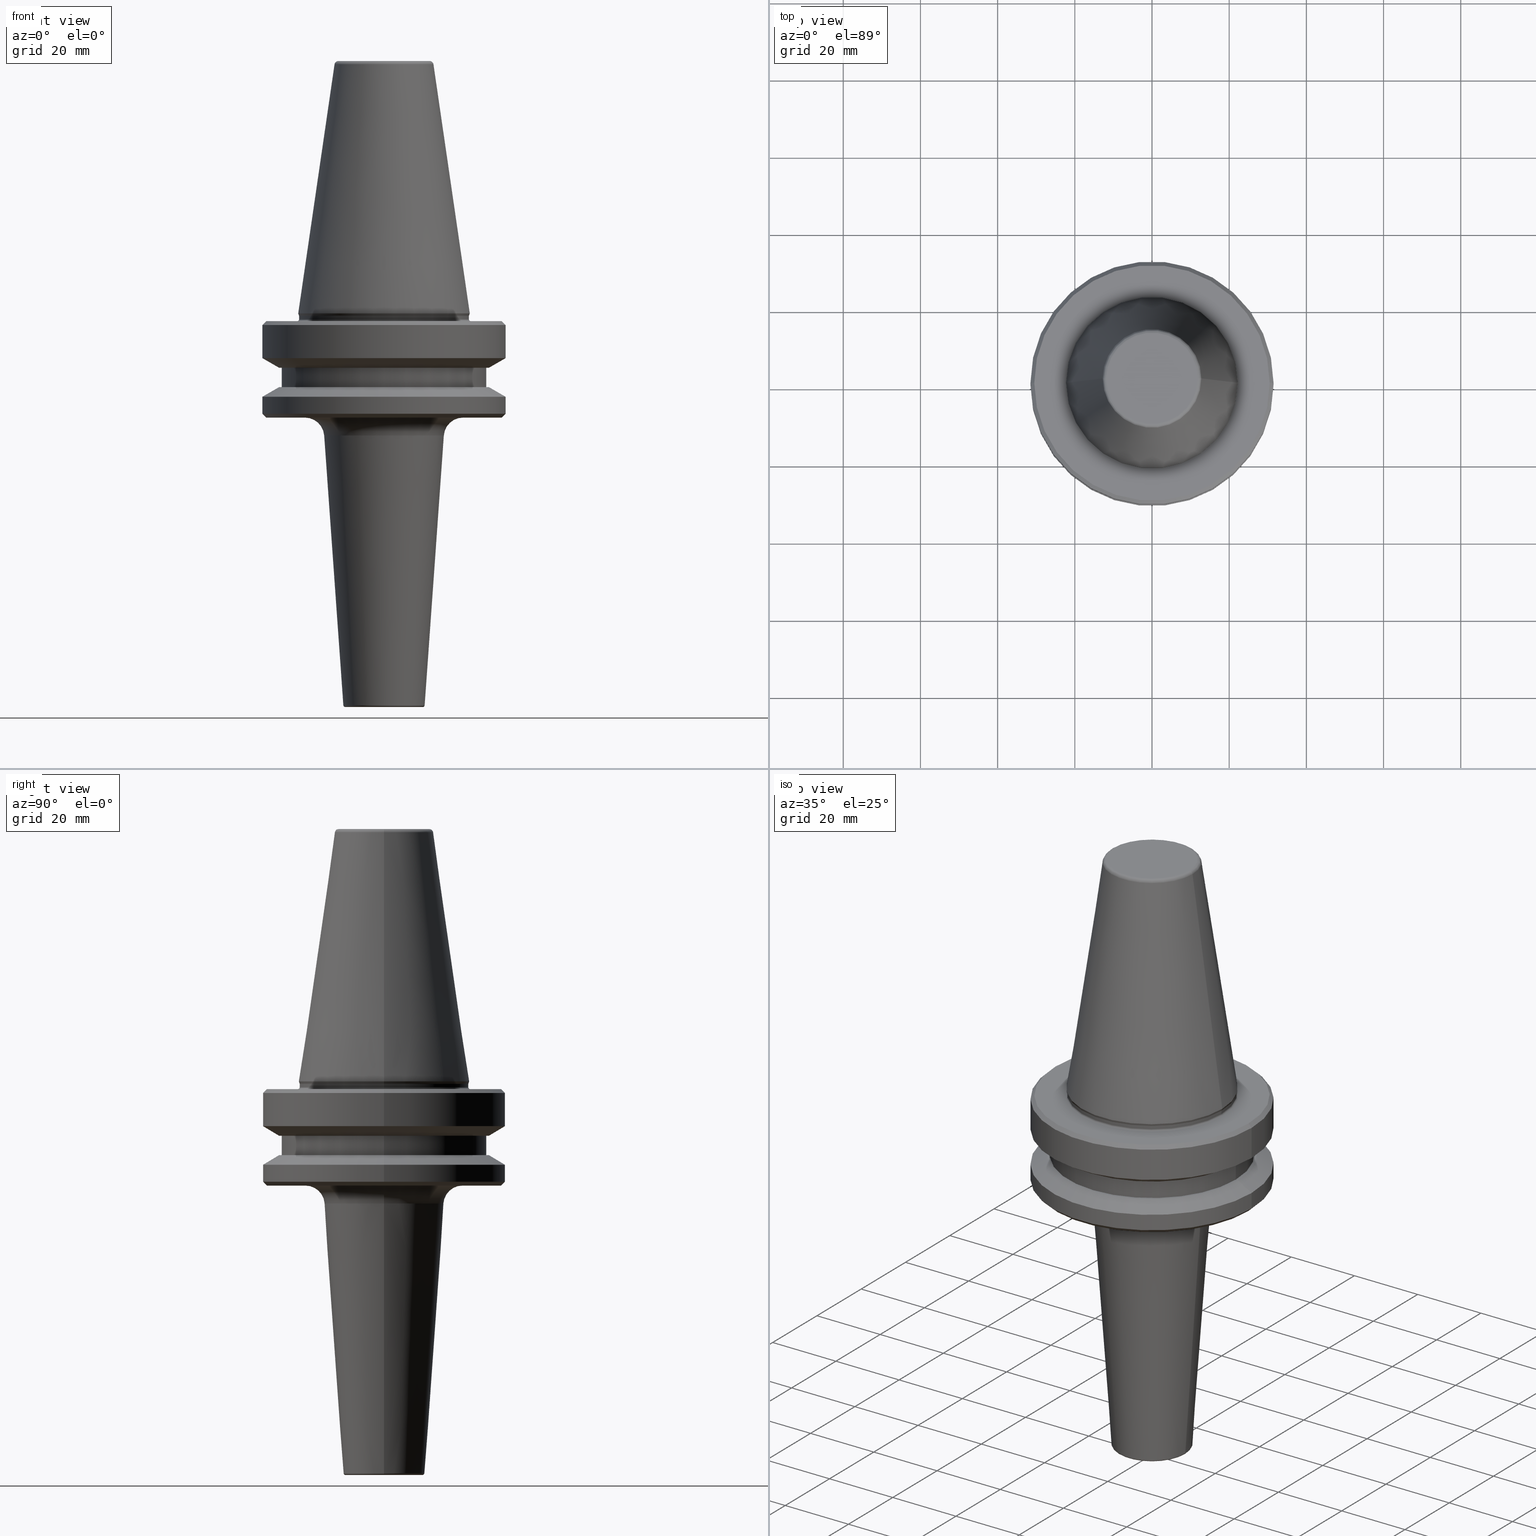
[diagram: canonical four-view strip — front | top / right | iso, engineering-drawing reading convention]
A machine part, canonical four-view strip (front | top / right | iso — engineering-drawing reading convention). The complete STEP part file that produces these views, byte-faithful:
ISO-10303-21;
HEADER;
FILE_DESCRIPTION (( 'STEP AP203' ),
    '1' );
FILE_NAME ('BT40 MCA12 075 AD+B-2.5G 25000 SL.STEP',
    '2019-05-24T10:12:03',
    ( '' ),
    ( '' ),
    'SwSTEP 2.0',
    'SolidWorks 2014',
    '' );
FILE_SCHEMA (( 'CONFIG_CONTROL_DESIGN' ));
ENDSEC;

DATA;
#1 = DIRECTION ( 'NONE',  ( -0.0000000000000000000, -0.0000000000000000000, 1.000000000000000000 ) ) ;
#2 = ORIENTED_EDGE ( 'NONE', *, *, #68, .F. ) ;
#3 = EDGE_LOOP ( 'NONE', ( #323, #1053, #568, #223 ) ) ;
#4 = DIRECTION ( 'NONE',  ( -0.0000000000000000000, -0.0000000000000000000, 1.000000000000000000 ) ) ;
#5 = ORIENTED_EDGE ( 'NONE', *, *, #383, .T. ) ;
#6 = CARTESIAN_POINT ( 'NONE',  ( -31.50000000000008500, 0.0000000000000000000, -87.00014200631733300 ) ) ;
#7 = DIRECTION ( 'NONE',  ( 0.8660254037844383700, 0.0000000000000000000, 0.5000000000000003300 ) ) ;
#8 = CIRCLE ( 'NONE', #724, 12.81220206925736900 ) ;
#9 = CARTESIAN_POINT ( 'NONE',  ( 0.0000000000000000000, 0.0000000000000000000, 6.357346922996331500 ) ) ;
#10 = DIRECTION ( 'NONE',  ( -0.0000000000000000000, -0.0000000000000000000, 1.000000000000000000 ) ) ;
#11 = EDGE_CURVE ( 'NONE', #379, #521, #798, .T. ) ;
#12 = COORDINATED_UNIVERSAL_TIME_OFFSET ( 5, 30, .AHEAD. ) ;
#13 = ORIENTED_EDGE ( 'NONE', *, *, #207, .F. ) ;
#14 = DIRECTION ( 'NONE',  ( -0.0000000000000000000, -0.0000000000000000000, 1.000000000000000000 ) ) ;
#15 = FACE_BOUND ( 'NONE', #271, .T. ) ;
#16 = CARTESIAN_POINT ( 'NONE',  ( 0.0000000000000000000, 0.0000000000000000000, -65.95190515433003500 ) ) ;
#17 = ORIENTED_EDGE ( 'NONE', *, *, #595, .F. ) ;
#18 = DIRECTION ( 'NONE',  ( 1.224646799147353200E-016, 1.000000000000000000, 0.0000000000000000000 ) ) ;
#19 = CIRCLE ( 'NONE', #691, 0.4000000000001536800 ) ;
#20 = VECTOR ( 'NONE', #430, 1000.000000000000000 ) ;
#21 = ORIENTED_EDGE ( 'NONE', *, *, #643, .T. ) ;
#22 = EDGE_CURVE ( 'NONE', #744, #153, #984, .T. ) ;
#23 = APPLICATION_PROTOCOL_DEFINITION ( 'international standard', 'config_control_design', 1994, #510 ) ;
#24 = EDGE_CURVE ( 'NONE', #511, #539, #551, .T. ) ;
#25 = CARTESIAN_POINT ( 'NONE',  ( -31.50000000000008500, 3.857637417314172900E-015, -91.40000000000037500 ) ) ;
#26 = ORIENTED_EDGE ( 'NONE', *, *, #373, .T. ) ;
#27 = FACE_OUTER_BOUND ( 'NONE', #131, .T. ) ;
#28 = APPROVAL_ROLE ( '' ) ;
#29 = DIRECTION ( 'NONE',  ( 1.000000000000000000, 0.0000000000000000000, 0.0000000000000000000 ) ) ;
#30 = ADVANCED_FACE ( 'NONE', ( #757 ), #344, .T. ) ;
#31 = EDGE_CURVE ( 'NONE', #297, #541, #961, .T. ) ;
#32 = AXIS2_PLACEMENT_3D ( 'NONE', #736, #275, #581 ) ;
#33 = ORIENTED_EDGE ( 'NONE', *, *, #31, .F. ) ;
#34 = EDGE_CURVE ( 'NONE', #153, #744, #120, .T. ) ;
#35 = ORIENTED_EDGE ( 'NONE', *, *, #819, .T. ) ;
#36 = EDGE_LOOP ( 'NONE', ( #925, #119, #661, #431 ) ) ;
#37 = FACE_OUTER_BOUND ( 'NONE', #892, .T. ) ;
#38 = LOCAL_TIME ( 15, 42, 3.000000000000000000, #260 ) ;
#39 = CARTESIAN_POINT ( 'NONE',  ( 0.0000000000000000000, 0.0000000000000000000, -97.04555044078095700 ) ) ;
#40 = ORIENTED_EDGE ( 'NONE', *, *, #519, .F. ) ;
#41 = DIRECTION ( 'NONE',  ( -0.0000000000000000000, -0.0000000000000000000, 1.000000000000000000 ) ) ;
#42 = EDGE_CURVE ( 'NONE', #67, #674, #523, .T. ) ;
#43 = FACE_OUTER_BOUND ( 'NONE', #309, .T. ) ;
#44 = AXIS2_PLACEMENT_3D ( 'NONE', #963, #55, #149 ) ;
#45 = ORIENTED_EDGE ( 'NONE', *, *, #759, .F. ) ;
#46 = ORIENTED_EDGE ( 'NONE', *, *, #643, .F. ) ;
#47 = DIRECTION ( 'NONE',  ( -0.0000000000000000000, -0.0000000000000000000, 1.000000000000000000 ) ) ;
#48 = CYLINDRICAL_SURFACE ( 'NONE', #441, 31.50000000000008500 ) ;
#49 = FACE_OUTER_BOUND ( 'NONE', #648, .T. ) ;
#50 = ORIENTED_EDGE ( 'NONE', *, *, #453, .F. ) ;
#51 = CARTESIAN_POINT ( 'NONE',  ( 31.50000000000008500, 0.0000000000000000000, -91.40000000000037500 ) ) ;
#52 = PLANE ( 'NONE',  #242 ) ;
#53 = VERTEX_POINT ( 'NONE', #381 ) ;
#54 = ORIENTED_EDGE ( 'NONE', *, *, #675, .T. ) ;
#55 = DIRECTION ( 'NONE',  ( -0.0000000000000000000, -0.0000000000000000000, 1.000000000000000000 ) ) ;
#56 = ORIENTED_EDGE ( 'NONE', *, *, #759, .T. ) ;
#57 = CARTESIAN_POINT ( 'NONE',  ( 0.0000000000000000000, 0.0000000000000000000, -79.50000000000012800 ) ) ;
#58 = EDGE_LOOP ( 'NONE', ( #386, #950, #317, #238 ) ) ;
#59 = DIRECTION ( 'NONE',  ( -0.0000000000000000000, -0.0000000000000000000, 1.000000000000000000 ) ) ;
#60 = CIRCLE ( 'NONE', #880, 31.50000000000008500 ) ;
#61 = DIRECTION ( 'NONE',  ( 1.000000000000000000, 0.0000000000000000000, 0.0000000000000000000 ) ) ;
#62 = DIRECTION ( 'NONE',  ( 0.0000000000000000000, 0.0000000000000000000, -1.000000000000000000 ) ) ;
#63 = ORIENTED_EDGE ( 'NONE', *, *, #608, .T. ) ;
#64 =( GEOMETRIC_REPRESENTATION_CONTEXT ( 3 ) GLOBAL_UNCERTAINTY_ASSIGNED_CONTEXT ( ( #572 ) ) GLOBAL_UNIT_ASSIGNED_CONTEXT ( ( #104, #664, #187 ) ) REPRESENTATION_CONTEXT ( 'NONE', 'WORKASPACE' ) );
#65 = ORGANIZATION ( 'UNSPECIFIED', 'UNSPECIFIED', '' ) ;
#66 = CARTESIAN_POINT ( 'NONE',  ( -20.48742072718592100, 2.508985421633337900E-015, -97.40000000000800600 ) ) ;
#67 = VERTEX_POINT ( 'NONE', #360 ) ;
#68 = EDGE_CURVE ( 'NONE', #361, #541, #938, .T. ) ;
#69 = DIRECTION ( 'NONE',  ( -0.0000000000000000000, -0.0000000000000000000, 1.000000000000000000 ) ) ;
#70 = VECTOR ( 'NONE', #1, 1000.000000000000000 ) ;
#71 = ORIENTED_EDGE ( 'NONE', *, *, #991, .F. ) ;
#72 = EDGE_LOOP ( 'NONE', ( #13, #765 ) ) ;
#73 = DIRECTION ( 'NONE',  ( -0.0000000000000000000, -0.0000000000000000000, 1.000000000000000000 ) ) ;
#74 = ORIENTED_EDGE ( 'NONE', *, *, #932, .F. ) ;
#75 = EDGE_CURVE ( 'NONE', #84, #112, #98, .T. ) ;
#76 = FACE_OUTER_BOUND ( 'NONE', #452, .T. ) ;
#77 = LINE ( 'NONE', #705, #920 ) ;
#78 = DIRECTION ( 'NONE',  ( -0.0000000000000000000, -0.0000000000000000000, 1.000000000000000000 ) ) ;
#79 = CARTESIAN_POINT ( 'NONE',  ( 0.0000000000000000000, 0.0000000000000000000, -66.08871321165987900 ) ) ;
#80 = EDGE_CURVE ( 'NONE', #830, #106, #499, .T. ) ;
#81 = ORIENTED_EDGE ( 'NONE', *, *, #373, .F. ) ;
#82 = DIRECTION ( 'NONE',  ( -0.0000000000000000000, -0.0000000000000000000, 1.000000000000000000 ) ) ;
#83 = DIRECTION ( 'NONE',  ( -1.000000000000000000, 0.0000000000000000000, 0.0000000000000000000 ) ) ;
#84 = VERTEX_POINT ( 'NONE', #1024 ) ;
#85 = ORIENTED_EDGE ( 'NONE', *, *, #383, .F. ) ;
#86 = ORIENTED_EDGE ( 'NONE', *, *, #662, .T. ) ;
#87 = AXIS2_PLACEMENT_3D ( 'NONE', #9, #654, #175 ) ;
#88 = CARTESIAN_POINT ( 'NONE',  ( 0.0000000000000000000, 0.0000000000000000000, -66.08871321165987900 ) ) ;
#89 = CIRCLE ( 'NONE', #118, 26.50000000000019200 ) ;
#90 = EDGE_CURVE ( 'NONE', #333, #53, #322, .T. ) ;
#91 = DIRECTION ( 'NONE',  ( -0.0000000000000000000, -0.0000000000000000000, 1.000000000000000000 ) ) ;
#92 = DIRECTION ( 'NONE',  ( 0.0000000000000000000, -1.000000000000000000, 0.0000000000000000000 ) ) ;
#93 = AXIS2_PLACEMENT_3D ( 'NONE', #330, #891, #413 ) ;
#94 = ORIENTED_EDGE ( 'NONE', *, *, #24, .T. ) ;
#95 = DIRECTION ( 'NONE',  ( -0.0000000000000000000, -0.0000000000000000000, 1.000000000000000000 ) ) ;
#96 = EDGE_CURVE ( 'NONE', #301, #680, #295, .T. ) ;
#97 = CARTESIAN_POINT ( 'NONE',  ( 0.0000000000000000000, 0.0000000000000000000, -68.40000000000046000 ) ) ;
#98 = CIRCLE ( 'NONE', #792, 22.22499999999993700 ) ;
#99 = DIRECTION ( 'NONE',  ( -0.0000000000000000000, -0.0000000000000000000, 1.000000000000000000 ) ) ;
#100 = ADVANCED_FACE ( 'NONE', ( #916 ), #475, .F. ) ;
#101 = VECTOR ( 'NONE', #95, 1000.000000000000000 ) ;
#102 = AXIS2_PLACEMENT_3D ( 'NONE', #729, #10, #574 ) ;
#103 = DIRECTION ( 'NONE',  ( 0.1443081888881795900, 1.767265616126607700E-017, -0.9895327920891826600 ) ) ;
#104 =( LENGTH_UNIT ( ) NAMED_UNIT ( * ) SI_UNIT ( .MILLI., .METRE. ) );
#105 = CARTESIAN_POINT ( 'NONE',  ( 22.22499999999993700, 0.0000000000000000000, -65.40000000000057400 ) ) ;
#106 = VERTEX_POINT ( 'NONE', #418 ) ;
#107 = AXIS2_PLACEMENT_3D ( 'NONE', #907, #422, #982 ) ;
#108 = AXIS2_PLACEMENT_3D ( 'NONE', #500, #142, #257 ) ;
#109 = APPROVAL_ROLE ( '' ) ;
#110 = CARTESIAN_POINT ( 'NONE',  ( 20.48742072718592100, 0.0000000000000000000, -97.40000000000800600 ) ) ;
#111 = EDGE_CURVE ( 'NONE', #339, #106, #881, .T. ) ;
#112 = VERTEX_POINT ( 'NONE', #711 ) ;
#113 = CARTESIAN_POINT ( 'NONE',  ( 31.50000000000008500, 0.0000000000000000000, -76.99985799368391800 ) ) ;
#114 = VECTOR ( 'NONE', #143, 1000.000000000000000 ) ;
#115 = EDGE_LOOP ( 'NONE', ( #375, #548, #562, #402 ) ) ;
#116 = DIRECTION ( 'NONE',  ( -0.07088991184540960300, 8.681510363331892600E-018, 0.9974841454371843300 ) ) ;
#117 = EDGE_CURVE ( 'NONE', #801, #67, #660, .T. ) ;
#118 = AXIS2_PLACEMENT_3D ( 'NONE', #791, #69, #627 ) ;
#119 = ORIENTED_EDGE ( 'NONE', *, *, #186, .F. ) ;
#120 = CIRCLE ( 'NONE', #443, 20.48742072718592100 ) ;
#121 = CONICAL_SURFACE ( 'NONE', #487, 15.50000000000000400, 0.07094942130596770800 ) ;
#122 = DIRECTION ( 'NONE',  ( 1.000000000000000000, 0.0000000000000000000, 0.0000000000000000000 ) ) ;
#123 = ORIENTED_EDGE ( 'NONE', *, *, #1032, .F. ) ;
#124 = EDGE_CURVE ( 'NONE', #541, #297, #267, .T. ) ;
#125 = APPROVAL_PERSON_ORGANIZATION ( #352, #843, #28 ) ;
#126 = ADVANCED_FACE ( 'NONE', ( #240, #15 ), #866, .F. ) ;
#127 = DIRECTION ( 'NONE',  ( 0.0000000000000000000, 0.0000000000000000000, -1.000000000000000000 ) ) ;
#128 = EDGE_CURVE ( 'NONE', #243, #202, #853, .T. ) ;
#129 = DIRECTION ( 'NONE',  ( 1.000000000000000000, 0.0000000000000000000, 0.0000000000000000000 ) ) ;
#130 = AXIS2_PLACEMENT_3D ( 'NONE', #213, #598, #122 ) ;
#131 = EDGE_LOOP ( 'NONE', ( #693, #687, #480, #824 ) ) ;
#132 = EDGE_LOOP ( 'NONE', ( #520, #829, #1004, #947 ) ) ;
#133 = EDGE_LOOP ( 'NONE', ( #505, #690, #1011, #331 ) ) ;
#134 = CARTESIAN_POINT ( 'NONE',  ( 0.0000000000000000000, 0.0000000000000000000, -76.99985799368391800 ) ) ;
#135 = EDGE_LOOP ( 'NONE', ( #854, #374, #158, #697 ) ) ;
#136 = FACE_OUTER_BOUND ( 'NONE', #980, .T. ) ;
#137 = ORIENTED_EDGE ( 'NONE', *, *, #708, .T. ) ;
#138 = AXIS2_PLACEMENT_3D ( 'NONE', #1014, #948, #460 ) ;
#139 = DIRECTION ( 'NONE',  ( 1.000000000000000000, 0.0000000000000000000, 0.0000000000000000000 ) ) ;
#140 = AXIS2_PLACEMENT_3D ( 'NONE', #198, #751, #284 ) ;
#141 = ORIENTED_EDGE ( 'NONE', *, *, #211, .F. ) ;
#142 = DIRECTION ( 'NONE',  ( -0.0000000000000000000, -0.0000000000000000000, 1.000000000000000000 ) ) ;
#143 = DIRECTION ( 'NONE',  ( -0.0000000000000000000, -0.0000000000000000000, 1.000000000000000000 ) ) ;
#144 = DIRECTION ( 'NONE',  ( 1.000000000000000000, 0.0000000000000000000, 0.0000000000000000000 ) ) ;
#145 = AXIS2_PLACEMENT_3D ( 'NONE', #771, #304, #859 ) ;
#146 = DIRECTION ( 'NONE',  ( 0.0000000000000000000, 0.0000000000000000000, -1.000000000000000000 ) ) ;
#147 = LINE ( 'NONE', #577, #553 ) ;
#148 = DIRECTION ( 'NONE',  ( 0.0000000000000000000, 0.0000000000000000000, -1.000000000000000000 ) ) ;
#149 = DIRECTION ( 'NONE',  ( 1.000000000000000000, 0.0000000000000000000, 0.0000000000000000000 ) ) ;
#150 = COORDINATED_UNIVERSAL_TIME_OFFSET ( 5, 30, .AHEAD. ) ;
#151 = CARTESIAN_POINT ( 'NONE',  ( 0.0000000000000000000, 0.0000000000000000000, -87.00014200631733300 ) ) ;
#152 = ORIENTED_EDGE ( 'NONE', *, *, #117, .F. ) ;
#153 = VERTEX_POINT ( 'NONE', #547 ) ;
#154 = SECURITY_CLASSIFICATION ( '', '', #929 ) ;
#155 = ORIENTED_EDGE ( 'NONE', *, *, #720, .T. ) ;
#156 = AXIS2_PLACEMENT_3D ( 'NONE', #820, #348, #915 ) ;
#157 = DIRECTION ( 'NONE',  ( -0.0000000000000000000, -0.0000000000000000000, 1.000000000000000000 ) ) ;
#158 = ORIENTED_EDGE ( 'NONE', *, *, #80, .T. ) ;
#159 = AXIS2_PLACEMENT_3D ( 'NONE', #208, #758, #292 ) ;
#160 = VERTEX_POINT ( 'NONE', #622 ) ;
#161 = CARTESIAN_POINT ( 'NONE',  ( 0.0000000000000000000, 0.0000000000000000000, -79.50000000000012800 ) ) ;
#162 = FACE_OUTER_BOUND ( 'NONE', #790, .T. ) ;
#163 = DIRECTION ( 'NONE',  ( 0.0000000000000000000, 0.0000000000000000000, -1.000000000000000000 ) ) ;
#164 = AXIS2_PLACEMENT_3D ( 'NONE', #955, #632, #775 ) ;
#165 = DIRECTION ( 'NONE',  ( 1.000000000000000000, 0.0000000000000000000, 0.0000000000000000000 ) ) ;
#166 = EDGE_CURVE ( 'NONE', #153, #539, #633, .T. ) ;
#167 = CYLINDRICAL_SURFACE ( 'NONE', #87, 26.50000000000019200 ) ;
#168 = AXIS2_PLACEMENT_3D ( 'NONE', #134, #864, #222 ) ;
#169 = ORIENTED_EDGE ( 'NONE', *, *, #968, .F. ) ;
#170 = DIRECTION ( 'NONE',  ( 1.000000000000000000, 0.0000000000000000000, 0.0000000000000000000 ) ) ;
#171 = CARTESIAN_POINT ( 'NONE',  ( 0.0000000000000000000, 0.0000000000000000000, 6.357346922996331500 ) ) ;
#172 = CC_DESIGN_PERSON_AND_ORGANIZATION_ASSIGNMENT ( #795, #835, ( #474 ) ) ;
#173 = DIRECTION ( 'NONE',  ( -0.0000000000000000000, -0.0000000000000000000, 1.000000000000000000 ) ) ;
#174 = EDGE_CURVE ( 'NONE', #379, #243, #730, .T. ) ;
#175 = DIRECTION ( 'NONE',  ( 1.000000000000000000, 0.0000000000000000000, 0.0000000000000000000 ) ) ;
#176 = AXIS2_PLACEMENT_3D ( 'NONE', #554, #73, #631 ) ;
#177 = CARTESIAN_POINT ( 'NONE',  ( 15.50000000000000400, 0.0000000000000000000, -97.04555044078095700 ) ) ;
#178 = CIRCLE ( 'NONE', #597, 26.50000000000019200 ) ;
#179 = DIRECTION ( 'NONE',  ( 1.000000000000000000, 0.0000000000000000000, 0.0000000000000000000 ) ) ;
#180 = ADVANCED_FACE ( 'NONE', ( #433, #43 ), #960, .F. ) ;
#181 = DATE_AND_TIME ( #399, #599 ) ;
#182 = AXIS2_PLACEMENT_3D ( 'NONE', #846, #531, #756 ) ;
#183 = ORIENTED_EDGE ( 'NONE', *, *, #364, .T. ) ;
#184 = CARTESIAN_POINT ( 'NONE',  ( -30.49999999999997200, 0.0000000000000000000, -67.40000000000034700 ) ) ;
#185 = CARTESIAN_POINT ( 'NONE',  ( 30.49999999999241900, 0.0000000000000000000, -92.40000000000803500 ) ) ;
#186 = EDGE_CURVE ( 'NONE', #339, #446, #827, .T. ) ;
#187 =( NAMED_UNIT ( * ) SI_UNIT ( $, .STERADIAN. ) SOLID_ANGLE_UNIT ( ) );
#188 = CIRCLE ( 'NONE', #769, 30.49999999999997200 ) ;
#189 = EDGE_LOOP ( 'NONE', ( #936, #686, #435, #721 ) ) ;
#190 = DIRECTION ( 'NONE',  ( -0.0000000000000000000, -0.0000000000000000000, 1.000000000000000000 ) ) ;
#191 = ORIENTED_EDGE ( 'NONE', *, *, #608, .F. ) ;
#192 = EDGE_CURVE ( 'NONE', #601, #949, #1045, .T. ) ;
#193 = CIRCLE ( 'NONE', #93, 11.82266927716813000 ) ;
#194 = DATE_TIME_ROLE ( 'creation_date' ) ;
#195 = VECTOR ( 'NONE', #1031, 1000.000000000000000 ) ;
#196 = ADVANCED_FACE ( 'NONE', ( #212 ), #1012, .T. ) ;
#197 = ORIENTED_EDGE ( 'NONE', *, *, #703, .T. ) ;
#198 = CARTESIAN_POINT ( 'NONE',  ( 0.0000000000000000000, 0.0000000000000000000, -84.50000000000068200 ) ) ;
#199 = ORIENTED_EDGE ( 'NONE', *, *, #419, .T. ) ;
#200 = EDGE_CURVE ( 'NONE', #229, #601, #1016, .T. ) ;
#201 = ORIENTED_EDGE ( 'NONE', *, *, #650, .F. ) ;
#202 = VERTEX_POINT ( 'NONE', #488 ) ;
#203 = CARTESIAN_POINT ( 'NONE',  ( 0.0000000000000000000, 0.0000000000000000000, -97.04555044078095700 ) ) ;
#204 = AXIS2_PLACEMENT_3D ( 'NONE', #486, #163, #83 ) ;
#205 = CIRCLE ( 'NONE', #32, 31.50000000000008500 ) ;
#206 = AXIS2_PLACEMENT_3D ( 'NONE', #509, #826, #353 ) ;
#207 = EDGE_CURVE ( 'NONE', #301, #811, #800, .T. ) ;
#208 = CARTESIAN_POINT ( 'NONE',  ( 0.0000000000000000000, 0.0000000000000000000, -66.08871321165987900 ) ) ;
#209 = PERSON_AND_ORGANIZATION ( #532, #65 ) ;
#210 = VERTEX_POINT ( 'NONE', #565 ) ;
#211 = EDGE_CURVE ( 'NONE', #1035, #607, #188, .T. ) ;
#212 = FACE_OUTER_BOUND ( 'NONE', #784, .T. ) ;
#213 = CARTESIAN_POINT ( 'NONE',  ( 0.0000000000000000000, 0.0000000000000000000, -66.90000000000040400 ) ) ;
#214 = ORIENTED_EDGE ( 'NONE', *, *, #787, .T. ) ;
#215 = ADVANCED_FACE ( 'NONE', ( #407 ), #492, .F. ) ;
#216 = ORIENTED_EDGE ( 'NONE', *, *, #968, .T. ) ;
#217 = FACE_OUTER_BOUND ( 'NONE', #908, .T. ) ;
#218 = DIRECTION ( 'NONE',  ( -1.000000000000000000, 0.0000000000000000000, -0.0000000000000000000 ) ) ;
#219 = EDGE_CURVE ( 'NONE', #446, #112, #77, .T. ) ;
#220 = LINE ( 'NONE', #522, #195 ) ;
#221 = AXIS2_PLACEMENT_3D ( 'NONE', #997, #514, #29 ) ;
#222 = DIRECTION ( 'NONE',  ( 1.000000000000000000, 0.0000000000000000000, 0.0000000000000000000 ) ) ;
#223 = ORIENTED_EDGE ( 'NONE', *, *, #683, .F. ) ;
#224 = FACE_OUTER_BOUND ( 'NONE', #3, .T. ) ;
#225 = DIRECTION ( 'NONE',  ( -0.0000000000000000000, -0.0000000000000000000, 1.000000000000000000 ) ) ;
#226 = DIRECTION ( 'NONE',  ( -1.000000000000000000, 1.224646799147357600E-016, 0.0000000000000000000 ) ) ;
#227 = AXIS2_PLACEMENT_3D ( 'NONE', #783, #912, #536 ) ;
#228 = DIRECTION ( 'NONE',  ( 1.000000000000000000, 0.0000000000000000000, 0.0000000000000000000 ) ) ;
#229 = VERTEX_POINT ( 'NONE', #321 ) ;
#230 = AXIS2_PLACEMENT_3D ( 'NONE', #151, #62, #542 ) ;
#231 = CARTESIAN_POINT ( 'NONE',  ( 0.0000000000000000000, 0.0000000000000000000, -167.4000000000080200 ) ) ;
#232 = DIRECTION ( 'NONE',  ( 0.0000000000000000000, -1.000000000000000000, 0.0000000000000000000 ) ) ;
#233 = CIRCLE ( 'NONE', #140, 27.16962701892256100 ) ;
#234 = PRODUCT ( 'BT40 MCA12 075 AD+B-2.5G 25000 SL', 'BT40 MCA12 075 AD+B-2.5G 25000 SL', '', ( #437 ) ) ;
#235 = DIRECTION ( 'NONE',  ( 1.000000000000000000, 0.0000000000000000000, 0.0000000000000000000 ) ) ;
#236 = PERSON_AND_ORGANIZATION ( #532, #65 ) ;
#237 = DIRECTION ( 'NONE',  ( -1.000000000000000000, 0.0000000000000000000, 0.0000000000000000000 ) ) ;
#238 = ORIENTED_EDGE ( 'NONE', *, *, #174, .F. ) ;
#239 = CARTESIAN_POINT ( 'NONE',  ( 0.0000000000000000000, 0.0000000000000000000, -92.40000000000803500 ) ) ;
#240 = FACE_OUTER_BOUND ( 'NONE', #72, .T. ) ;
#241 = CARTESIAN_POINT ( 'NONE',  ( 31.50000000000008500, 0.0000000000000000000, 6.357346922996331500 ) ) ;
#242 = AXIS2_PLACEMENT_3D ( 'NONE', #1006, #849, #129 ) ;
#243 = VERTEX_POINT ( 'NONE', #876 ) ;
#244 = DIRECTION ( 'NONE',  ( 1.000000000000000000, 0.0000000000000000000, 0.0000000000000000000 ) ) ;
#245 = LINE ( 'NONE', #868, #663 ) ;
#246 = CIRCLE ( 'NONE', #274, 0.4999999999996968500 ) ;
#247 = CARTESIAN_POINT ( 'NONE',  ( 22.00000000000002100, 0.0000000000000000000, 6.357346922996331500 ) ) ;
#248 = DIRECTION ( 'NONE',  ( 1.000000000000000000, 0.0000000000000000000, 0.0000000000000000000 ) ) ;
#249 = FACE_OUTER_BOUND ( 'NONE', #558, .T. ) ;
#250 = DIRECTION ( 'NONE',  ( 1.000000000000000000, 0.0000000000000000000, 0.0000000000000000000 ) ) ;
#251 = ORIENTED_EDGE ( 'NONE', *, *, #1041, .F. ) ;
#252 = AXIS2_PLACEMENT_3D ( 'NONE', #766, #692, #218 ) ;
#253 = CARTESIAN_POINT ( 'NONE',  ( 20.48742072718592100, 0.0000000000000000000, -92.40000000000800600 ) ) ;
#254 = CARTESIAN_POINT ( 'NONE',  ( 0.0000000000000000000, 0.0000000000000000000, -87.00014200631733300 ) ) ;
#255 = CONICAL_SURFACE ( 'NONE', #571, 31.50000000000008500, 1.047197551196597400 ) ;
#256 = CARTESIAN_POINT ( 'NONE',  ( 0.0000000000000000000, 0.0000000000000000000, -91.40000000000037500 ) ) ;
#257 = DIRECTION ( 'NONE',  ( 1.000000000000000000, 0.0000000000000000000, 0.0000000000000000000 ) ) ;
#258 = ADVANCED_FACE ( 'NONE', ( #300 ), #606, .F. ) ;
#259 = CARTESIAN_POINT ( 'NONE',  ( 0.0000000000000000000, 0.0000000000000000000, -76.99985799368391800 ) ) ;
#260 = COORDINATED_UNIVERSAL_TIME_OFFSET ( 5, 30, .AHEAD. ) ;
#261 = CARTESIAN_POINT ( 'NONE',  ( 0.0000000000000000000, 0.0000000000000000000, -65.95190515433003500 ) ) ;
#262 = EDGE_LOOP ( 'NONE', ( #251, #296, #739, #26 ) ) ;
#263 = DIRECTION ( 'NONE',  ( -1.000000000000000000, 0.0000000000000000000, 0.0000000000000000000 ) ) ;
#264 = ADVANCED_FACE ( 'NONE', ( #49 ), #665, .T. ) ;
#265 = DIRECTION ( 'NONE',  ( 1.000000000000000000, 0.0000000000000000000, 0.0000000000000000000 ) ) ;
#266 = DIRECTION ( 'NONE',  ( -0.0000000000000000000, -0.0000000000000000000, 1.000000000000000000 ) ) ;
#267 = CIRCLE ( 'NONE', #1021, 26.50000000000019200 ) ;
#268 = EDGE_LOOP ( 'NONE', ( #63, #5, #45, #972 ) ) ;
#269 = DIRECTION ( 'NONE',  ( -1.000000000000000000, 1.224646799147352500E-016, 0.0000000000000000000 ) ) ;
#270 = ORIENTED_EDGE ( 'NONE', *, *, #905, .F. ) ;
#271 = EDGE_LOOP ( 'NONE', ( #417, #978 ) ) ;
#272 = CARTESIAN_POINT ( 'NONE',  ( 30.49999999999997200, 3.796405077356798300E-015, -67.40000000000034700 ) ) ;
#273 = ORIENTED_EDGE ( 'NONE', *, *, #658, .T. ) ;
#274 = AXIS2_PLACEMENT_3D ( 'NONE', #958, #467, #464 ) ;
#275 = DIRECTION ( 'NONE',  ( -0.0000000000000000000, -0.0000000000000000000, 1.000000000000000000 ) ) ;
#276 = FACE_OUTER_BOUND ( 'NONE', #620, .T. ) ;
#277 = VECTOR ( 'NONE', #962, 1000.000000000000000 ) ;
#278 = APPLICATION_PROTOCOL_DEFINITION ( 'international standard', 'config_control_design', 1994, #354 ) ;
#279 = EDGE_CURVE ( 'NONE', #285, #112, #483, .T. ) ;
#280 = CARTESIAN_POINT ( 'NONE',  ( 0.0000000000000000000, 0.0000000000000000000, -166.9354449559309900 ) ) ;
#281 = ORIENTED_EDGE ( 'NONE', *, *, #712, .T. ) ;
#282 = ADVANCED_FACE ( 'NONE', ( #886 ), #438, .T. ) ;
#283 = APPROVAL_ROLE ( '' ) ;
#284 = DIRECTION ( 'NONE',  ( 1.000000000000000000, 0.0000000000000000000, 0.0000000000000000000 ) ) ;
#285 = VERTEX_POINT ( 'NONE', #454 ) ;
#286 = TOROIDAL_SURFACE ( 'NONE', #130, 22.49999999999996400, 0.4999999999999449300 ) ;
#287 = CARTESIAN_POINT ( 'NONE',  ( -22.49999999999996400, 2.755455298081540400E-015, -67.40000000000034700 ) ) ;
#288 = SHAPE_DEFINITION_REPRESENTATION ( #669, #517 ) ;
#289 = CC_DESIGN_APPROVAL ( #713, ( #768 ) ) ;
#290 = ORIENTED_EDGE ( 'NONE', *, *, #698, .T. ) ;
#291 = EDGE_CURVE ( 'NONE', #616, #754, #461, .T. ) ;
#292 = DIRECTION ( 'NONE',  ( 1.000000000000000000, 0.0000000000000000000, 0.0000000000000000000 ) ) ;
#293 = EDGE_CURVE ( 'NONE', #1035, #515, #639, .T. ) ;
#294 = ADVANCED_FACE ( 'NONE', ( #689 ), #412, .T. ) ;
#295 = LINE ( 'NONE', #974, #684 ) ;
#296 = ORIENTED_EDGE ( 'NONE', *, *, #603, .F. ) ;
#297 = VERTEX_POINT ( 'NONE', #965 ) ;
#298 = DIRECTION ( 'NONE',  ( -0.0000000000000000000, -0.0000000000000000000, 1.000000000000000000 ) ) ;
#299 = CIRCLE ( 'NONE', #434, 11.82266927716813000 ) ;
#300 = FACE_OUTER_BOUND ( 'NONE', #525, .T. ) ;
#301 = VERTEX_POINT ( 'NONE', #728 ) ;
#302 = ADVANCED_FACE ( 'NONE', ( #833 ), #1023, .T. ) ;
#303 = PLANE ( 'NONE',  #252 ) ;
#304 = DIRECTION ( 'NONE',  ( -0.0000000000000000000, -0.0000000000000000000, 1.000000000000000000 ) ) ;
#305 = ORIENTED_EDGE ( 'NONE', *, *, #117, .T. ) ;
#306 = ADVANCED_FACE ( 'NONE', ( #1049, #857 ), #52, .F. ) ;
#307 = EDGE_CURVE ( 'NONE', #210, #67, #220, .T. ) ;
#308 = DIRECTION ( 'NONE',  ( 1.000000000000000000, 0.0000000000000000000, 0.0000000000000000000 ) ) ;
#309 = EDGE_LOOP ( 'NONE', ( #332, #781 ) ) ;
#310 = ORIENTED_EDGE ( 'NONE', *, *, #675, .F. ) ;
#311 = DIRECTION ( 'NONE',  ( 0.0000000000000000000, 0.0000000000000000000, -1.000000000000000000 ) ) ;
#312 = CARTESIAN_POINT ( 'NONE',  ( 0.0000000000000000000, 0.0000000000000000000, 6.357346922996331500 ) ) ;
#313 = FACE_OUTER_BOUND ( 'NONE', #802, .T. ) ;
#314 = EDGE_CURVE ( 'NONE', #521, #202, #246, .T. ) ;
#315 = DIRECTION ( 'NONE',  ( 1.000000000000000000, 0.0000000000000000000, 0.0000000000000000000 ) ) ;
#316 = DIRECTION ( 'NONE',  ( 0.0000000000000000000, 0.0000000000000000000, -1.000000000000000000 ) ) ;
#317 = ORIENTED_EDGE ( 'NONE', *, *, #128, .F. ) ;
#318 = AXIS2_PLACEMENT_3D ( 'NONE', #97, #657, #179 ) ;
#319 = CARTESIAN_POINT ( 'NONE',  ( -22.02412295168553100, 2.697177167680943700E-015, -65.95190515433003500 ) ) ;
#320 = AXIS2_PLACEMENT_3D ( 'NONE', #400, #731, #555 ) ;
#321 = CARTESIAN_POINT ( 'NONE',  ( -22.00000000000002100, 2.724839128102860200E-015, -66.90000000000040400 ) ) ;
#322 = LINE ( 'NONE', #491, #70 ) ;
#323 = ORIENTED_EDGE ( 'NONE', *, *, #453, .T. ) ;
#324 = CARTESIAN_POINT ( 'NONE',  ( -11.82266927716813000, 1.447859408766170200E-015, -1.000000000000334000 ) ) ;
#325 = DIRECTION ( 'NONE',  ( 1.000000000000000000, 0.0000000000000000000, 0.0000000000000000000 ) ) ;
#326 = CIRCLE ( 'NONE', #872, 10.03427325516696900 ) ;
#327 = EDGE_LOOP ( 'NONE', ( #882, #216, #842, #71 ) ) ;
#328 = DIRECTION ( 'NONE',  ( -0.0000000000000000000, -0.0000000000000000000, 1.000000000000000000 ) ) ;
#329 = DATE_AND_TIME ( #533, #737 ) ;
#330 = CARTESIAN_POINT ( 'NONE',  ( 0.0000000000000000000, 0.0000000000000000000, -4.440892098500626200E-013 ) ) ;
#331 = ORIENTED_EDGE ( 'NONE', *, *, #192, .F. ) ;
#332 = ORIENTED_EDGE ( 'NONE', *, *, #865, .T. ) ;
#333 = VERTEX_POINT ( 'NONE', #392 ) ;
#334 = CYLINDRICAL_SURFACE ( 'NONE', #755, 31.50000000000008500 ) ;
#335 = DIRECTION ( 'NONE',  ( -0.0000000000000000000, -0.0000000000000000000, 1.000000000000000000 ) ) ;
#336 = ORIENTED_EDGE ( 'NONE', *, *, #22, .F. ) ;
#337 = DIRECTION ( 'NONE',  ( -0.0000000000000000000, -0.0000000000000000000, 1.000000000000000000 ) ) ;
#338 = DIRECTION ( 'NONE',  ( 1.000000000000000000, 0.0000000000000000000, 0.0000000000000000000 ) ) ;
#339 = VERTEX_POINT ( 'NONE', #610 ) ;
#340 = DIRECTION ( 'NONE',  ( 1.000000000000000000, 0.0000000000000000000, 0.0000000000000000000 ) ) ;
#341 = DIRECTION ( 'NONE',  ( -0.0000000000000000000, -0.0000000000000000000, 1.000000000000000000 ) ) ;
#342 = CARTESIAN_POINT ( 'NONE',  ( 0.0000000000000000000, 0.0000000000000000000, -92.40000000000800600 ) ) ;
#343 = DIRECTION ( 'NONE',  ( 1.000000000000000000, 0.0000000000000000000, 0.0000000000000000000 ) ) ;
#344 = TOROIDAL_SURFACE ( 'NONE', #227, 10.03427325516696900, 0.4999999999996970800 ) ;
#345 = DIRECTION ( 'NONE',  ( 1.000000000000000000, 0.0000000000000000000, 0.0000000000000000000 ) ) ;
#346 = ADVANCED_FACE ( 'NONE', ( #612 ), #564, .T. ) ;
#347 = CIRCLE ( 'NONE', #102, 27.16962701892256100 ) ;
#348 = DIRECTION ( 'NONE',  ( -0.0000000000000000000, -0.0000000000000000000, 1.000000000000000000 ) ) ;
#349 = ORIENTED_EDGE ( 'NONE', *, *, #279, .T. ) ;
#350 = DIRECTION ( 'NONE',  ( 1.000000000000000000, 0.0000000000000000000, 0.0000000000000000000 ) ) ;
#351 = ADVANCED_FACE ( 'NONE', ( #806 ), #384, .T. ) ;
#352 = PERSON_AND_ORGANIZATION ( #532, #65 ) ;
#353 = DIRECTION ( 'NONE',  ( 1.000000000000000000, 0.0000000000000000000, 0.0000000000000000000 ) ) ;
#354 = APPLICATION_CONTEXT ( 'configuration controlled 3d designs of mechanical parts and assemblies' ) ;
#355 = ADVANCED_FACE ( 'NONE', ( #588 ), #749, .T. ) ;
#356 = AXIS2_PLACEMENT_3D ( 'NONE', #494, #4, #570 ) ;
#357 = PERSON_AND_ORGANIZATION_ROLE ( 'design_supplier' ) ;
#358 = ORIENTED_EDGE ( 'NONE', *, *, #896, .T. ) ;
#359 = VECTOR ( 'NONE', #804, 1000.000000000000000 ) ;
#360 = CARTESIAN_POINT ( 'NONE',  ( 31.50000000000008500, 0.0000000000000000000, -87.00014200631733300 ) ) ;
#361 = VERTEX_POINT ( 'NONE', #537 ) ;
#362 = AXIS2_PLACEMENT_3D ( 'NONE', #39, #477, #1043 ) ;
#363 = CYLINDRICAL_SURFACE ( 'NONE', #506, 31.50000000000008500 ) ;
#364 = EDGE_CURVE ( 'NONE', #811, #301, #996, .T. ) ;
#365 = ORIENTED_EDGE ( 'NONE', *, *, #96, .T. ) ;
#366 = AXIS2_PLACEMENT_3D ( 'NONE', #508, #18, #583 ) ;
#367 = AXIS2_PLACEMENT_3D ( 'NONE', #312, #328, #709 ) ;
#368 = EDGE_LOOP ( 'NONE', ( #970, #717 ) ) ;
#369 = CIRCLE ( 'NONE', #732, 22.02412295168554100 ) ;
#370 = DIRECTION ( 'NONE',  ( 1.000000000000000000, 0.0000000000000000000, 0.0000000000000000000 ) ) ;
#371 = CARTESIAN_POINT ( 'NONE',  ( 31.50000000000008500, 0.0000000000000000000, -68.40000000000046000 ) ) ;
#372 = PERSON_AND_ORGANIZATION ( #532, #65 ) ;
#373 = EDGE_CURVE ( 'NONE', #949, #582, #971, .T. ) ;
#374 = ORIENTED_EDGE ( 'NONE', *, *, #778, .T. ) ;
#375 = ORIENTED_EDGE ( 'NONE', *, *, #34, .F. ) ;
#376 = CARTESIAN_POINT ( 'NONE',  ( 0.0000000000000000000, 0.0000000000000000000, -76.99985799368391800 ) ) ;
#377 = DIRECTION ( 'NONE',  ( 1.000000000000000000, 0.0000000000000000000, 0.0000000000000000000 ) ) ;
#378 = ADVANCED_FACE ( 'NONE', ( #136 ), #334, .T. ) ;
#379 = VERTEX_POINT ( 'NONE', #535 ) ;
#380 = EDGE_CURVE ( 'NONE', #530, #674, #543, .T. ) ;
#381 = CARTESIAN_POINT ( 'NONE',  ( -31.50000000000008500, 3.857637417314172900E-015, -68.40000000000046000 ) ) ;
#382 = APPROVAL_DATE_TIME ( #329, #843 ) ;
#383 = EDGE_CURVE ( 'NONE', #285, #941, #776, .T. ) ;
#384 = TOROIDAL_SURFACE ( 'NONE', #164, 11.82266927716813000, 0.9999999999999696900 ) ;
#385 = DIRECTION ( 'NONE',  ( -0.0000000000000000000, -0.0000000000000000000, 1.000000000000000000 ) ) ;
#386 = ORIENTED_EDGE ( 'NONE', *, *, #11, .T. ) ;
#387 = CONICAL_SURFACE ( 'NONE', #888, 31.50000000000008500, 0.7853981633974500600 ) ;
#388 = CARTESIAN_POINT ( 'NONE',  ( -22.40000000000019800, 2.743208830090095500E-015, -66.08871321165987900 ) ) ;
#389 = ORIENTED_EDGE ( 'NONE', *, *, #279, .F. ) ;
#390 = DIRECTION ( 'NONE',  ( 0.0000000000000000000, -1.000000000000000000, 0.0000000000000000000 ) ) ;
#391 = ORIENTED_EDGE ( 'NONE', *, *, #767, .T. ) ;
#392 = CARTESIAN_POINT ( 'NONE',  ( -31.50000000000008500, 3.857637417314172900E-015, -76.99985799368391800 ) ) ;
#393 = DIRECTION ( 'NONE',  ( -0.0000000000000000000, -0.0000000000000000000, 1.000000000000000000 ) ) ;
#394 = EDGE_CURVE ( 'NONE', #616, #801, #956, .T. ) ;
#395 = VECTOR ( 'NONE', #103, 1000.000000000000000 ) ;
#396 = CARTESIAN_POINT ( 'NONE',  ( 0.0000000000000000000, 0.0000000000000000000, 6.357346922996331500 ) ) ;
#397 = ORIENTED_EDGE ( 'NONE', *, *, #75, .F. ) ;
#398 = DIRECTION ( 'NONE',  ( -1.000000000000000000, 1.224646799147353000E-016, 0.0000000000000000000 ) ) ;
#399 = CALENDAR_DATE ( 2019, 24, 5 ) ;
#400 = CARTESIAN_POINT ( 'NONE',  ( 0.0000000000000000000, 0.0000000000000000000, -67.40000000000034700 ) ) ;
#401 = ORIENTED_EDGE ( 'NONE', *, *, #605, .F. ) ;
#402 = ORIENTED_EDGE ( 'NONE', *, *, #524, .F. ) ;
#403 = PLANE ( 'NONE',  #405 ) ;
#404 = AXIS2_PLACEMENT_3D ( 'NONE', #396, #834, #235 ) ;
#405 = AXIS2_PLACEMENT_3D ( 'NONE', #473, #1044, #557 ) ;
#406 = CARTESIAN_POINT ( 'NONE',  ( 0.0000000000000000000, 0.0000000000000000000, -79.50000000000012800 ) ) ;
#407 = FACE_OUTER_BOUND ( 'NONE', #36, .T. ) ;
#408 = ORIENTED_EDGE ( 'NONE', *, *, #96, .F. ) ;
#409 = DIRECTION ( 'NONE',  ( 1.000000000000000000, 0.0000000000000000000, 0.0000000000000000000 ) ) ;
#410 = DIRECTION ( 'NONE',  ( -0.0000000000000000000, -0.0000000000000000000, 1.000000000000000000 ) ) ;
#411 = FACE_BOUND ( 'NONE', #1018, .T. ) ;
#412 = CONICAL_SURFACE ( 'NONE', #362, 15.50000000000000400, 0.07094942130596770800 ) ;
#413 = DIRECTION ( 'NONE',  ( 1.000000000000000000, 0.0000000000000000000, 0.0000000000000000000 ) ) ;
#414 = CARTESIAN_POINT ( 'NONE',  ( 0.0000000000000000000, 0.0000000000000000000, -97.40000000000800600 ) ) ;
#415 = CARTESIAN_POINT ( 'NONE',  ( 0.0000000000000000000, 0.0000000000000000000, -91.40000000000037500 ) ) ;
#416 = CYLINDRICAL_SURFACE ( 'NONE', #676, 31.50000000000008500 ) ;
#417 = ORIENTED_EDGE ( 'NONE', *, *, #124, .T. ) ;
#418 = CARTESIAN_POINT ( 'NONE',  ( 22.00000000000002100, 0.0000000000000000000, -66.08871321165987900 ) ) ;
#419 = EDGE_CURVE ( 'NONE', #1002, #361, #89, .T. ) ;
#420 = CARTESIAN_POINT ( 'NONE',  ( -15.50000000000000400, 1.898202538678398000E-015, -97.04555044078095700 ) ) ;
#421 = CARTESIAN_POINT ( 'NONE',  ( 0.0000000000000000000, 0.0000000000000000000, -97.04555044078095700 ) ) ;
#422 = DIRECTION ( 'NONE',  ( -0.0000000000000000000, -0.0000000000000000000, 1.000000000000000000 ) ) ;
#423 = CIRCLE ( 'NONE', #159, 22.00000000000002100 ) ;
#424 = DIRECTION ( 'NONE',  ( -0.0000000000000000000, -0.0000000000000000000, 1.000000000000000000 ) ) ;
#425 = AXIS2_PLACEMENT_3D ( 'NONE', #259, #815, #343 ) ;
#426 = AXIS2_PLACEMENT_3D ( 'NONE', #667, #190, #741 ) ;
#427 = CARTESIAN_POINT ( 'NONE',  ( -26.50000000000019200, 3.245314017740509400E-015, -84.50000000000068200 ) ) ;
#428 = AXIS2_PLACEMENT_3D ( 'NONE', #552, #148, #1038 ) ;
#429 = DATE_AND_TIME ( #628, #848 ) ;
#430 = DIRECTION ( 'NONE',  ( 0.7071067811865474600, 8.659560562354931600E-017, -0.7071067811865475700 ) ) ;
#431 = ORIENTED_EDGE ( 'NONE', *, *, #650, .T. ) ;
#432 = CARTESIAN_POINT ( 'NONE',  ( -30.49999999999241900, 3.796405077356336000E-015, -92.40000000000803500 ) ) ;
#433 = FACE_BOUND ( 'NONE', #797, .T. ) ;
#434 = AXIS2_PLACEMENT_3D ( 'NONE', #544, #59, #621 ) ;
#435 = ORIENTED_EDGE ( 'NONE', *, *, #905, .T. ) ;
#436 = FACE_OUTER_BOUND ( 'NONE', #189, .T. ) ;
#437 = MECHANICAL_CONTEXT ( 'NONE', #354, 'mechanical' ) ;
#438 = CONICAL_SURFACE ( 'NONE', #428, 31.50000000000008500, 1.047197551196587000 ) ;
#439 = CARTESIAN_POINT ( 'NONE',  ( -30.49999999999997200, 0.0000000000000000000, -67.40000000000034700 ) ) ;
#440 = DIRECTION ( 'NONE',  ( -0.0000000000000000000, -0.0000000000000000000, 1.000000000000000000 ) ) ;
#441 = AXIS2_PLACEMENT_3D ( 'NONE', #171, #341, #338 ) ;
#442 = PERSON_AND_ORGANIZATION_ROLE ( 'classification_officer' ) ;
#443 = AXIS2_PLACEMENT_3D ( 'NONE', #342, #841, #308 ) ;
#444 = CONICAL_SURFACE ( 'NONE', #204, 12.81220206925736900, 0.1448138077623198300 ) ;
#445 = DIRECTION ( 'NONE',  ( -0.0000000000000000000, -0.0000000000000000000, 1.000000000000000000 ) ) ;
#446 = VERTEX_POINT ( 'NONE', #319 ) ;
#447 = VECTOR ( 'NONE', #584, 1000.000000000000000 ) ;
#448 = CARTESIAN_POINT ( 'NONE',  ( 26.50000000000019200, 0.0000000000000000000, -79.50000000000012800 ) ) ;
#449 = CC_DESIGN_DATE_AND_TIME_ASSIGNMENT ( #556, #995, ( #154 ) ) ;
#450 = ADVANCED_FACE ( 'NONE', ( #935 ), #902, .T. ) ;
#451 = APPROVAL_DATE_TIME ( #655, #713 ) ;
#452 = EDGE_LOOP ( 'NONE', ( #1013, #593, #858, #152 ) ) ;
#453 = EDGE_CURVE ( 'NONE', #680, #333, #60, .T. ) ;
#454 = CARTESIAN_POINT ( 'NONE',  ( -12.81220206925736900, 0.0000000000000000000, -0.8556918111122247000 ) ) ;
#455 = ADVANCED_FACE ( 'NONE', ( #313 ), #255, .T. ) ;
#456 = VECTOR ( 'NONE', #385, 1000.000000000000000 ) ;
#457 = DIRECTION ( 'NONE',  ( 1.000000000000000000, 0.0000000000000000000, 0.0000000000000000000 ) ) ;
#458 = ORIENTED_EDGE ( 'NONE', *, *, #419, .F. ) ;
#459 = CIRCLE ( 'NONE', #682, 30.49999999999997200 ) ;
#460 = DIRECTION ( 'NONE',  ( 1.000000000000000000, 0.0000000000000000000, 0.0000000000000000000 ) ) ;
#461 = CIRCLE ( 'NONE', #761, 30.49999999999241900 ) ;
#462 = DIRECTION ( 'NONE',  ( -0.0000000000000000000, -0.0000000000000000000, 1.000000000000000000 ) ) ;
#463 = CIRCLE ( 'NONE', #318, 31.50000000000008500 ) ;
#464 = DIRECTION ( 'NONE',  ( -1.000000000000000000, 1.224646799147353500E-016, 0.0000000000000000000 ) ) ;
#465 = AXIS2_PLACEMENT_3D ( 'NONE', #838, #445, #818 ) ;
#466 = CIRCLE ( 'NONE', #793, 22.49999999999996400 ) ;
#467 = DIRECTION ( 'NONE',  ( 1.224646799147353200E-016, 1.000000000000000000, 0.0000000000000000000 ) ) ;
#468 = APPROVAL_PERSON_ORGANIZATION ( #679, #713, #109 ) ;
#469 = DIRECTION ( 'NONE',  ( 1.000000000000000000, 0.0000000000000000000, 0.0000000000000000000 ) ) ;
#470 = ORIENTED_EDGE ( 'NONE', *, *, #307, .F. ) ;
#471 = CARTESIAN_POINT ( 'NONE',  ( -12.81220206925736900, 0.0000000000000000000, -0.8556918111122247000 ) ) ;
#472 = AXIS2_PLACEMENT_3D ( 'NONE', #614, #528, #263 ) ;
#473 = CARTESIAN_POINT ( 'NONE',  ( 0.0000000000000000000, 0.0000000000000000000, -167.4000000000080200 ) ) ;
#474 = PRODUCT_DEFINITION_FORMATION_WITH_SPECIFIED_SOURCE ( 'ANY', '', #234, .NOT_KNOWN. ) ;
#475 = TOROIDAL_SURFACE ( 'NONE', #1026, 22.40000000000019800, 0.4000000000001546800 ) ;
#476 = ORIENTED_EDGE ( 'NONE', *, *, #658, .F. ) ;
#477 = DIRECTION ( 'NONE',  ( -0.0000000000000000000, -0.0000000000000000000, 1.000000000000000000 ) ) ;
#478 = ORIENTED_EDGE ( 'NONE', *, *, #635, .T. ) ;
#479 = ORIENTED_EDGE ( 'NONE', *, *, #34, .T. ) ;
#480 = ORIENTED_EDGE ( 'NONE', *, *, #922, .F. ) ;
#481 = CARTESIAN_POINT ( 'NONE',  ( 0.0000000000000000000, 0.0000000000000000000, -97.40000000000800600 ) ) ;
#482 = TOROIDAL_SURFACE ( 'NONE', #44, 22.49999999999996400, 0.4999999999999449300 ) ;
#483 = LINE ( 'NONE', #471, #277 ) ;
#484 = ORIENTED_EDGE ( 'NONE', *, *, #931, .F. ) ;
#485 = AXIS2_PLACEMENT_3D ( 'NONE', #481, #78, #409 ) ;
#486 = CARTESIAN_POINT ( 'NONE',  ( 0.0000000000000000000, 0.0000000000000000000, -0.8556918111122247000 ) ) ;
#487 = AXIS2_PLACEMENT_3D ( 'NONE', #203, #99, #743 ) ;
#488 = CARTESIAN_POINT ( 'NONE',  ( -10.53301532788526500, 1.289922350666469600E-015, -166.9354449559309900 ) ) ;
#489 = ORIENTED_EDGE ( 'NONE', *, *, #999, .T. ) ;
#490 = DIRECTION ( 'NONE',  ( -0.0000000000000000000, -0.0000000000000000000, 1.000000000000000000 ) ) ;
#491 = CARTESIAN_POINT ( 'NONE',  ( -31.50000000000008500, 3.857637417314172900E-015, 6.357346922996331500 ) ) ;
#492 = TOROIDAL_SURFACE ( 'NONE', #747, 22.40000000000019800, 0.4000000000001546800 ) ;
#493 = TOROIDAL_SURFACE ( 'NONE', #182, 10.03427325516696900, 0.4999999999996970800 ) ;
#494 = CARTESIAN_POINT ( 'NONE',  ( 0.0000000000000000000, 0.0000000000000000000, -97.04555044078095700 ) ) ;
#495 = CARTESIAN_POINT ( 'NONE',  ( 31.50000000000008500, 0.0000000000000000000, -91.40000000000037500 ) ) ;
#496 = CARTESIAN_POINT ( 'NONE',  ( -22.00000000000002100, 2.694222958124179600E-015, 6.357346922996331500 ) ) ;
#497 = ORIENTED_EDGE ( 'NONE', *, *, #931, .T. ) ;
#498 = DIRECTION ( 'NONE',  ( -0.0000000000000000000, -0.0000000000000000000, 1.000000000000000000 ) ) ;
#499 = CIRCLE ( 'NONE', #1050, 22.00000000000002100 ) ;
#500 = CARTESIAN_POINT ( 'NONE',  ( 0.0000000000000000000, 0.0000000000000000000, -65.40000000000057400 ) ) ;
#501 = ORIENTED_EDGE ( 'NONE', *, *, #186, .T. ) ;
#502 = CARTESIAN_POINT ( 'NONE',  ( 0.0000000000000000000, 0.0000000000000000000, 6.357346922996331500 ) ) ;
#503 = CARTESIAN_POINT ( 'NONE',  ( 0.0000000000000000000, 0.0000000000000000000, -0.8556918111122247000 ) ) ;
#504 = VECTOR ( 'NONE', #901, 1000.000000000000000 ) ;
#505 = ORIENTED_EDGE ( 'NONE', *, *, #200, .F. ) ;
#506 = AXIS2_PLACEMENT_3D ( 'NONE', #733, #498, #265 ) ;
#507 = AXIS2_PLACEMENT_3D ( 'NONE', #734, #266, #822 ) ;
#508 = CARTESIAN_POINT ( 'NONE',  ( -22.49999999999996400, 2.755455298081540400E-015, -66.90000000000040400 ) ) ;
#509 = CARTESIAN_POINT ( 'NONE',  ( 0.0000000000000000000, 0.0000000000000000000, -66.90000000000040400 ) ) ;
#510 = APPLICATION_CONTEXT ( 'configuration controlled 3d designs of mechanical parts and assemblies' ) ;
#511 = VERTEX_POINT ( 'NONE', #852 ) ;
#512 = DIRECTION ( 'NONE',  ( 1.000000000000000000, 0.0000000000000000000, 0.0000000000000000000 ) ) ;
#513 = APPROVAL_STATUS ( 'not_yet_approved' ) ;
#514 = DIRECTION ( 'NONE',  ( -0.0000000000000000000, -0.0000000000000000000, 1.000000000000000000 ) ) ;
#515 = VERTEX_POINT ( 'NONE', #371 ) ;
#516 = CARTESIAN_POINT ( 'NONE',  ( 30.49999999999997200, 3.735172737399423600E-015, -67.40000000000034700 ) ) ;
#517 = ADVANCED_BREP_SHAPE_REPRESENTATION ( 'BT40 MCA12 075 AD+B-2.5G 25000 SL', ( #1029, #828 ), #64 ) ;
#518 = FACE_OUTER_BOUND ( 'NONE', #550, .T. ) ;
#519 = EDGE_CURVE ( 'NONE', #582, #949, #466, .T. ) ;
#520 = ORIENTED_EDGE ( 'NONE', *, *, #703, .F. ) ;
#521 = VERTEX_POINT ( 'NONE', #685 ) ;
#522 = CARTESIAN_POINT ( 'NONE',  ( 31.50000000000008500, 3.857637417314172900E-015, -87.00014200631733300 ) ) ;
#523 = CIRCLE ( 'NONE', #924, 31.50000000000008500 ) ;
#524 = EDGE_CURVE ( 'NONE', #744, #511, #701, .T. ) ;
#525 = EDGE_LOOP ( 'NONE', ( #913, #336, #646, #94 ) ) ;
#526 = CARTESIAN_POINT ( 'NONE',  ( 0.0000000000000000000, 0.0000000000000000000, -84.50000000000068200 ) ) ;
#527 = ADVANCED_FACE ( 'NONE', ( #518 ), #303, .F. ) ;
#528 = DIRECTION ( 'NONE',  ( 0.0000000000000000000, 0.0000000000000000000, -1.000000000000000000 ) ) ;
#529 = VECTOR ( 'NONE', #116, 1000.000000000000100 ) ;
#530 = VERTEX_POINT ( 'NONE', #25 ) ;
#531 = DIRECTION ( 'NONE',  ( -0.0000000000000000000, -0.0000000000000000000, 1.000000000000000000 ) ) ;
#532 = PERSON ( 'UNSPECIFIED', 'UNSPECIFIED', 'UNSPECIFIED', ('UNSPECIFIED'), ('UNSPECIFIED'), ('UNSPECIFIED') ) ;
#533 = CALENDAR_DATE ( 2019, 24, 5 ) ;
#534 = ADVANCED_FACE ( 'NONE', ( #871 ), #286, .F. ) ;
#535 = CARTESIAN_POINT ( 'NONE',  ( 10.03427325516696900, 0.0000000000000000000, -167.4000000000080200 ) ) ;
#536 = DIRECTION ( 'NONE',  ( 1.000000000000000000, 0.0000000000000000000, 0.0000000000000000000 ) ) ;
#537 = CARTESIAN_POINT ( 'NONE',  ( 26.50000000000019200, 0.0000000000000000000, -84.50000000000068200 ) ) ;
#538 = DIRECTION ( 'NONE',  ( 1.000000000000000000, 0.0000000000000000000, 0.0000000000000000000 ) ) ;
#539 = VERTEX_POINT ( 'NONE', #930 ) ;
#540 = AXIS2_PLACEMENT_3D ( 'NONE', #110, #586, #127 ) ;
#541 = VERTEX_POINT ( 'NONE', #448 ) ;
#542 = DIRECTION ( 'NONE',  ( -1.000000000000000000, 0.0000000000000000000, 0.0000000000000000000 ) ) ;
#543 = LINE ( 'NONE', #695, #114 ) ;
#544 = CARTESIAN_POINT ( 'NONE',  ( 0.0000000000000000000, 0.0000000000000000000, -4.440892098500626200E-013 ) ) ;
#545 = ORIENTED_EDGE ( 'NONE', *, *, #380, .F. ) ;
#546 = CIRCLE ( 'NONE', #366, 0.4999999999999449300 ) ;
#547 = CARTESIAN_POINT ( 'NONE',  ( -20.48742072718592100, 2.508985421633337900E-015, -92.40000000000800600 ) ) ;
#548 = ORIENTED_EDGE ( 'NONE', *, *, #166, .T. ) ;
#549 = ORIENTED_EDGE ( 'NONE', *, *, #613, .F. ) ;
#550 = EDGE_LOOP ( 'NONE', ( #56, #358 ) ) ;
#551 = CIRCLE ( 'NONE', #740, 15.50000000000000400 ) ;
#552 = CARTESIAN_POINT ( 'NONE',  ( 0.0000000000000000000, 0.0000000000000000000, -87.00014200631733300 ) ) ;
#553 = VECTOR ( 'NONE', #914, 1000.000000000000000 ) ;
#554 = CARTESIAN_POINT ( 'NONE',  ( 0.0000000000000000000, 0.0000000000000000000, -166.9354449559309900 ) ) ;
#555 = DIRECTION ( 'NONE',  ( -1.000000000000000000, 0.0000000000000000000, 0.0000000000000000000 ) ) ;
#556 = DATE_AND_TIME ( #763, #990 ) ;
#557 = DIRECTION ( 'NONE',  ( -1.000000000000000000, 0.0000000000000000000, -0.0000000000000000000 ) ) ;
#558 = EDGE_LOOP ( 'NONE', ( #704, #497, #592, #401 ) ) ;
#559 = CARTESIAN_POINT ( 'NONE',  ( 0.0000000000000000000, 0.0000000000000000000, -1.000000000000334000 ) ) ;
#560 = CARTESIAN_POINT ( 'NONE',  ( 0.0000000000000000000, 0.0000000000000000000, -67.40000000000034700 ) ) ;
#561 = ORIENTED_EDGE ( 'NONE', *, *, #605, .T. ) ;
#562 = ORIENTED_EDGE ( 'NONE', *, *, #932, .T. ) ;
#563 = DIRECTION ( 'NONE',  ( 1.000000000000000000, 0.0000000000000000000, 0.0000000000000000000 ) ) ;
#564 = CONICAL_SURFACE ( 'NONE', #230, 31.50000000000008500, 1.047197551196587000 ) ;
#565 = CARTESIAN_POINT ( 'NONE',  ( 27.16962701892256100, 3.592478546794633900E-015, -84.50000000000068200 ) ) ;
#566 = VERTEX_POINT ( 'NONE', #937 ) ;
#567 = CARTESIAN_POINT ( 'NONE',  ( -11.82266927716813000, 1.508450817090336800E-015, -4.440892098500626200E-013 ) ) ;
#568 = ORIENTED_EDGE ( 'NONE', *, *, #943, .F. ) ;
#569 = VECTOR ( 'NONE', #659, 1000.000000000000000 ) ;
#570 = DIRECTION ( 'NONE',  ( 1.000000000000000000, 0.0000000000000000000, 0.0000000000000000000 ) ) ;
#571 = AXIS2_PLACEMENT_3D ( 'NONE', #1036, #1005, #469 ) ;
#572 = UNCERTAINTY_MEASURE_WITH_UNIT (LENGTH_MEASURE( 1.000000000000000100E-005 ), #104, 'distance_accuracy_value', 'NONE');
#573 = CARTESIAN_POINT ( 'NONE',  ( 11.82266927716813000, 0.0000000000000000000, -1.000000000000334000 ) ) ;
#574 = DIRECTION ( 'NONE',  ( 1.000000000000000000, 0.0000000000000000000, 0.0000000000000000000 ) ) ;
#575 = VECTOR ( 'NONE', #1009, 1000.000000000000100 ) ;
#576 = ORIENTED_EDGE ( 'NONE', *, *, #293, .F. ) ;
#577 = CARTESIAN_POINT ( 'NONE',  ( 31.50000000000008500, 0.0000000000000000000, 6.357346922996331500 ) ) ;
#578 = ADVANCED_FACE ( 'NONE', ( #653 ), #493, .T. ) ;
#579 = DIRECTION ( 'NONE',  ( -0.0000000000000000000, -0.0000000000000000000, 1.000000000000000000 ) ) ;
#580 = PERSON_AND_ORGANIZATION ( #532, #65 ) ;
#581 = DIRECTION ( 'NONE',  ( 1.000000000000000000, 0.0000000000000000000, 0.0000000000000000000 ) ) ;
#582 = VERTEX_POINT ( 'NONE', #287 ) ;
#583 = DIRECTION ( 'NONE',  ( -1.000000000000000000, 1.224646799147354400E-016, 0.0000000000000000000 ) ) ;
#584 = DIRECTION ( 'NONE',  ( 0.3420201433262311000, 0.0000000000000000000, 0.9396926207857037000 ) ) ;
#585 = APPROVAL_STATUS ( 'not_yet_approved' ) ;
#586 = DIRECTION ( 'NONE',  ( 0.0000000000000000000, -1.000000000000000000, 0.0000000000000000000 ) ) ;
#587 = LINE ( 'NONE', #247, #359 ) ;
#588 = FACE_OUTER_BOUND ( 'NONE', #861, .T. ) ;
#589 = AXIS2_PLACEMENT_3D ( 'NONE', #634, #966, #244 ) ;
#590 = ORIENTED_EDGE ( 'NONE', *, *, #1032, .T. ) ;
#591 = LINE ( 'NONE', #184, #569 ) ;
#592 = ORIENTED_EDGE ( 'NONE', *, *, #394, .T. ) ;
#593 = ORIENTED_EDGE ( 'NONE', *, *, #380, .T. ) ;
#594 = LINE ( 'NONE', #847, #575 ) ;
#595 = EDGE_CURVE ( 'NONE', #339, #84, #677, .T. ) ;
#596 = ADVANCED_FACE ( 'NONE', ( #37 ), #1034, .T. ) ;
#597 = AXIS2_PLACEMENT_3D ( 'NONE', #526, #41, #370 ) ;
#598 = DIRECTION ( 'NONE',  ( -0.0000000000000000000, -0.0000000000000000000, 1.000000000000000000 ) ) ;
#599 = LOCAL_TIME ( 15, 42, 3.000000000000000000, #821 ) ;
#600 = ORIENTED_EDGE ( 'NONE', *, *, #68, .T. ) ;
#601 = VERTEX_POINT ( 'NONE', #926 ) ;
#602 = DIRECTION ( 'NONE',  ( 1.000000000000000000, 0.0000000000000000000, 0.0000000000000000000 ) ) ;
#603 = EDGE_CURVE ( 'NONE', #601, #229, #845, .T. ) ;
#604 = AXIS2_PLACEMENT_3D ( 'NONE', #502, #579, #988 ) ;
#605 = EDGE_CURVE ( 'NONE', #530, #801, #205, .T. ) ;
#606 = TOROIDAL_SURFACE ( 'NONE', #726, 20.48742072718592100, 5.000000000000002700 ) ;
#607 = VERTEX_POINT ( 'NONE', #439 ) ;
#608 = EDGE_CURVE ( 'NONE', #566, #285, #8, .T. ) ;
#609 = EDGE_LOOP ( 'NONE', ( #813, #391, #899, #696 ) ) ;
#610 = CARTESIAN_POINT ( 'NONE',  ( 22.02412295168553100, 0.0000000000000000000, -65.95190515433003500 ) ) ;
#611 = CYLINDRICAL_SURFACE ( 'NONE', #367, 22.00000000000002100 ) ;
#612 = FACE_OUTER_BOUND ( 'NONE', #877, .T. ) ;
#613 = EDGE_CURVE ( 'NONE', #674, #67, #625, .T. ) ;
#614 = CARTESIAN_POINT ( 'NONE',  ( 0.0000000000000000000, 0.0000000000000000000, -67.40000000000034700 ) ) ;
#615 = AXIS2_PLACEMENT_3D ( 'NONE', #973, #490, #1055 ) ;
#616 = VERTEX_POINT ( 'NONE', #185 ) ;
#617 = CIRCLE ( 'NONE', #107, 31.50000000000008500 ) ;
#618 = ORIENTED_EDGE ( 'NONE', *, *, #662, .F. ) ;
#619 = DIRECTION ( 'NONE',  ( -0.0000000000000000000, -0.0000000000000000000, 1.000000000000000000 ) ) ;
#620 = EDGE_LOOP ( 'NONE', ( #501, #816, #397, #17 ) ) ;
#621 = DIRECTION ( 'NONE',  ( 1.000000000000000000, 0.0000000000000000000, 0.0000000000000000000 ) ) ;
#622 = CARTESIAN_POINT ( 'NONE',  ( 11.82266927716813000, 0.0000000000000000000, -4.440892098500626200E-013 ) ) ;
#623 = AXIS2_PLACEMENT_3D ( 'NONE', #324, #879, #398 ) ;
#624 = ORIENTED_EDGE ( 'NONE', *, *, #999, .F. ) ;
#625 = CIRCLE ( 'NONE', #221, 31.50000000000008500 ) ;
#626 = DIRECTION ( 'NONE',  ( 1.224646799147353200E-016, 1.000000000000000000, 0.0000000000000000000 ) ) ;
#627 = DIRECTION ( 'NONE',  ( 1.000000000000000000, 0.0000000000000000000, 0.0000000000000000000 ) ) ;
#628 = CALENDAR_DATE ( 2019, 24, 5 ) ;
#629 = EDGE_LOOP ( 'NONE', ( #954, #199, #600, #33 ) ) ;
#630 = DESIGN_CONTEXT ( 'detailed design', #510, 'design' ) ;
#631 = DIRECTION ( 'NONE',  ( 1.000000000000000000, 0.0000000000000000000, 0.0000000000000000000 ) ) ;
#632 = DIRECTION ( 'NONE',  ( -0.0000000000000000000, -0.0000000000000000000, 1.000000000000000000 ) ) ;
#633 = CIRCLE ( 'NONE', #989, 5.000000000000004400 ) ;
#634 = CARTESIAN_POINT ( 'NONE',  ( 0.0000000000000000000, 0.0000000000000000000, -84.50000000000068200 ) ) ;
#635 = EDGE_CURVE ( 'NONE', #722, #210, #233, .T. ) ;
#636 = CLOSED_SHELL ( 'NONE', ( #294, #30, #351, #921, #770, #100, #1015, #534, #196, #942, #455, #264, #282, #748, #952, #855, #258, #306, #928, #378, #346, #851, #986, #126, #355, #1008, #302, #180, #823, #831, #215, #596, #450, #910, #527, #837, #578, #681 ) ) ;
#637 = DIRECTION ( 'NONE',  ( -0.0000000000000000000, -0.0000000000000000000, 1.000000000000000000 ) ) ;
#638 = FACE_OUTER_BOUND ( 'NONE', #262, .T. ) ;
#639 = LINE ( 'NONE', #516, #20 ) ;
#640 = CARTESIAN_POINT ( 'NONE',  ( 0.0000000000000000000, 0.0000000000000000000, -67.40000000000034700 ) ) ;
#641 = DIRECTION ( 'NONE',  ( 1.000000000000000000, 0.0000000000000000000, 0.0000000000000000000 ) ) ;
#642 = APPROVAL ( #742, 'UNSPECIFIED' ) ;
#643 = EDGE_CURVE ( 'NONE', #566, #84, #814, .T. ) ;
#644 = CIRCLE ( 'NONE', #615, 31.50000000000008500 ) ;
#645 = AXIS2_PLACEMENT_3D ( 'NONE', #573, #92, #652 ) ;
#646 = ORIENTED_EDGE ( 'NONE', *, *, #524, .T. ) ;
#647 = DIRECTION ( 'NONE',  ( -0.0000000000000000000, -0.0000000000000000000, 1.000000000000000000 ) ) ;
#648 = EDGE_LOOP ( 'NONE', ( #273, #214, #772, #2 ) ) ;
#649 = DIRECTION ( 'NONE',  ( -0.0000000000000000000, -0.0000000000000000000, 1.000000000000000000 ) ) ;
#650 = EDGE_CURVE ( 'NONE', #106, #830, #423, .T. ) ;
#651 = AXIS2_PLACEMENT_3D ( 'NONE', #927, #668, #228 ) ;
#652 = DIRECTION ( 'NONE',  ( 0.0000000000000000000, 0.0000000000000000000, -1.000000000000000000 ) ) ;
#653 = FACE_OUTER_BOUND ( 'NONE', #609, .T. ) ;
#654 = DIRECTION ( 'NONE',  ( -0.0000000000000000000, -0.0000000000000000000, 1.000000000000000000 ) ) ;
#655 = DATE_AND_TIME ( #875, #38 ) ;
#656 = EDGE_LOOP ( 'NONE', ( #869, #155, #201, #270 ) ) ;
#657 = DIRECTION ( 'NONE',  ( -0.0000000000000000000, -0.0000000000000000000, 1.000000000000000000 ) ) ;
#658 = EDGE_CURVE ( 'NONE', #361, #1002, #178, .T. ) ;
#659 = DIRECTION ( 'NONE',  ( -0.7071067811865474600, 0.0000000000000000000, -0.7071067811865475700 ) ) ;
#660 = LINE ( 'NONE', #241, #456 ) ;
#661 = ORIENTED_EDGE ( 'NONE', *, *, #111, .T. ) ;
#662 = EDGE_CURVE ( 'NONE', #811, #333, #594, .T. ) ;
#663 = VECTOR ( 'NONE', #393, 1000.000000000000000 ) ;
#664 =( NAMED_UNIT ( * ) PLANE_ANGLE_UNIT ( ) SI_UNIT ( $, .RADIAN. ) );
#665 = CYLINDRICAL_SURFACE ( 'NONE', #404, 26.50000000000019200 ) ;
#666 = ORIENTED_EDGE ( 'NONE', *, *, #613, .T. ) ;
#667 = CARTESIAN_POINT ( 'NONE',  ( 0.0000000000000000000, 0.0000000000000000000, -65.40000000000057400 ) ) ;
#668 = DIRECTION ( 'NONE',  ( -0.0000000000000000000, -0.0000000000000000000, 1.000000000000000000 ) ) ;
#669 = PRODUCT_DEFINITION_SHAPE ( 'NONE', 'NONE',  #768 ) ;
#670 = PERSON_AND_ORGANIZATION_ROLE ( 'creator' ) ;
#671 = CIRCLE ( 'NONE', #156, 22.22499999999993700 ) ;
#672 = DIRECTION ( 'NONE',  ( -0.0000000000000000000, -0.0000000000000000000, 1.000000000000000000 ) ) ;
#673 = CARTESIAN_POINT ( 'NONE',  ( 12.81220206925736900, 1.569042225414513200E-015, -0.8556918111122247000 ) ) ;
#674 = VERTEX_POINT ( 'NONE', #939 ) ;
#675 = EDGE_CURVE ( 'NONE', #285, #566, #789, .T. ) ;
#676 = AXIS2_PLACEMENT_3D ( 'NONE', #976, #91, #165 ) ;
#677 = LINE ( 'NONE', #105, #447 ) ;
#678 = AXIS2_PLACEMENT_3D ( 'NONE', #870, #390, #957 ) ;
#679 = PERSON_AND_ORGANIZATION ( #532, #65 ) ;
#680 = VERTEX_POINT ( 'NONE', #113 ) ;
#681 = ADVANCED_FACE ( 'NONE', ( #1007 ), #121, .T. ) ;
#682 = AXIS2_PLACEMENT_3D ( 'NONE', #640, #157, #718 ) ;
#683 = EDGE_CURVE ( 'NONE', #680, #515, #147, .T. ) ;
#684 = VECTOR ( 'NONE', #7, 1000.000000000000100 ) ;
#685 = CARTESIAN_POINT ( 'NONE',  ( -10.03427325516696900, 1.259383206518740800E-015, -167.4000000000080200 ) ) ;
#686 = ORIENTED_EDGE ( 'NONE', *, *, #200, .T. ) ;
#687 = ORIENTED_EDGE ( 'NONE', *, *, #725, .T. ) ;
#688 = VECTOR ( 'NONE', #909, 1000.000000000000000 ) ;
#689 = FACE_OUTER_BOUND ( 'NONE', #959, .T. ) ;
#690 = ORIENTED_EDGE ( 'NONE', *, *, #1041, .T. ) ;
#691 = AXIS2_PLACEMENT_3D ( 'NONE', #388, #699, #226 ) ;
#692 = DIRECTION ( 'NONE',  ( 0.0000000000000000000, 0.0000000000000000000, -1.000000000000000000 ) ) ;
#693 = ORIENTED_EDGE ( 'NONE', *, *, #291, .T. ) ;
#694 = ORIENTED_EDGE ( 'NONE', *, *, #635, .F. ) ;
#695 = CARTESIAN_POINT ( 'NONE',  ( -31.50000000000008500, 3.857637417314172900E-015, 6.357346922996331500 ) ) ;
#696 = ORIENTED_EDGE ( 'NONE', *, *, #819, .F. ) ;
#697 = ORIENTED_EDGE ( 'NONE', *, *, #111, .F. ) ;
#698 = EDGE_CURVE ( 'NONE', #446, #339, #369, .T. ) ;
#699 = DIRECTION ( 'NONE',  ( 1.224646799147353200E-016, 1.000000000000000000, 0.0000000000000000000 ) ) ;
#700 = DIRECTION ( 'NONE',  ( 0.0000000000000000000, -0.0000000000000000000, 1.000000000000000000 ) ) ;
#701 = CIRCLE ( 'NONE', #540, 5.000000000000004400 ) ;
#702 = CARTESIAN_POINT ( 'NONE',  ( 10.03427325516696900, 0.0000000000000000000, -166.9000000000083300 ) ) ;
#703 = EDGE_CURVE ( 'NONE', #210, #722, #347, .T. ) ;
#704 = ORIENTED_EDGE ( 'NONE', *, *, #725, .F. ) ;
#705 = CARTESIAN_POINT ( 'NONE',  ( -22.22499999999993700, 2.721777511104985000E-015, -65.40000000000057400 ) ) ;
#706 = CARTESIAN_POINT ( 'NONE',  ( 0.0000000000000000000, 0.0000000000000000000, -0.8556918111122247000 ) ) ;
#707 = VECTOR ( 'NONE', #225, 1000.000000000000000 ) ;
#708 = EDGE_CURVE ( 'NONE', #243, #511, #760, .T. ) ;
#709 = DIRECTION ( 'NONE',  ( 1.000000000000000000, 0.0000000000000000000, 0.0000000000000000000 ) ) ;
#710 = LINE ( 'NONE', #983, #504 ) ;
#711 = CARTESIAN_POINT ( 'NONE',  ( -22.22499999999993700, 2.721777511104985000E-015, -65.40000000000057400 ) ) ;
#712 = EDGE_CURVE ( 'NONE', #566, #160, #987, .T. ) ;
#713 = APPROVAL ( #585, 'UNSPECIFIED' ) ;
#714 = PLANE ( 'NONE',  #589 ) ;
#715 = DIRECTION ( 'NONE',  ( 1.000000000000000000, 0.0000000000000000000, 0.0000000000000000000 ) ) ;
#716 = AXIS2_PLACEMENT_3D ( 'NONE', #752, #440, #377 ) ;
#717 = ORIENTED_EDGE ( 'NONE', *, *, #767, .F. ) ;
#718 = DIRECTION ( 'NONE',  ( 1.000000000000000000, 0.0000000000000000000, 0.0000000000000000000 ) ) ;
#719 = DIRECTION ( 'NONE',  ( -0.0000000000000000000, -0.0000000000000000000, 1.000000000000000000 ) ) ;
#720 = EDGE_CURVE ( 'NONE', #229, #830, #964, .T. ) ;
#721 = ORIENTED_EDGE ( 'NONE', *, *, #80, .F. ) ;
#722 = VERTEX_POINT ( 'NONE', #979 ) ;
#723 = VECTOR ( 'NONE', #1017, 1000.000000000000000 ) ;
#724 = AXIS2_PLACEMENT_3D ( 'NONE', #503, #14, #350 ) ;
#725 = EDGE_CURVE ( 'NONE', #754, #530, #710, .T. ) ;
#726 = AXIS2_PLACEMENT_3D ( 'NONE', #414, #424, #934 ) ;
#727 = ORIENTED_EDGE ( 'NONE', *, *, #865, .F. ) ;
#728 = CARTESIAN_POINT ( 'NONE',  ( 27.16962701892322600, 0.0000000000000000000, -79.50000000000012800 ) ) ;
#729 = CARTESIAN_POINT ( 'NONE',  ( 0.0000000000000000000, 0.0000000000000000000, -84.50000000000068200 ) ) ;
#730 = CIRCLE ( 'NONE', #975, 0.4999999999996951300 ) ;
#731 = DIRECTION ( 'NONE',  ( 0.0000000000000000000, 0.0000000000000000000, -1.000000000000000000 ) ) ;
#732 = AXIS2_PLACEMENT_3D ( 'NONE', #261, #817, #345 ) ;
#733 = CARTESIAN_POINT ( 'NONE',  ( 0.0000000000000000000, 0.0000000000000000000, 6.357346922996331500 ) ) ;
#734 = CARTESIAN_POINT ( 'NONE',  ( 0.0000000000000000000, 0.0000000000000000000, -0.8556918111122247000 ) ) ;
#735 = VECTOR ( 'NONE', #985, 1000.000000000000100 ) ;
#736 = CARTESIAN_POINT ( 'NONE',  ( 0.0000000000000000000, 0.0000000000000000000, -91.40000000000037500 ) ) ;
#737 = LOCAL_TIME ( 15, 42, 3.000000000000000000, #967 ) ;
#738 = EDGE_CURVE ( 'NONE', #202, #539, #945, .T. ) ;
#739 = ORIENTED_EDGE ( 'NONE', *, *, #192, .T. ) ;
#740 = AXIS2_PLACEMENT_3D ( 'NONE', #421, #462, #1019 ) ;
#741 = DIRECTION ( 'NONE',  ( 1.000000000000000000, 0.0000000000000000000, 0.0000000000000000000 ) ) ;
#742 = APPROVAL_STATUS ( 'not_yet_approved' ) ;
#743 = DIRECTION ( 'NONE',  ( 1.000000000000000000, 0.0000000000000000000, 0.0000000000000000000 ) ) ;
#744 = VERTEX_POINT ( 'NONE', #253 ) ;
#745 = EDGE_CURVE ( 'NONE', #722, #674, #918, .T. ) ;
#746 = ORIENTED_EDGE ( 'NONE', *, *, #595, .T. ) ;
#747 = AXIS2_PLACEMENT_3D ( 'NONE', #1052, #894, #144 ) ;
#748 = ADVANCED_FACE ( 'NONE', ( #76 ), #48, .T. ) ;
#749 = CONICAL_SURFACE ( 'NONE', #168, 31.50000000000008500, 1.047197551196597400 ) ;
#750 = AXIS2_PLACEMENT_3D ( 'NONE', #706, #146, #237 ) ;
#751 = DIRECTION ( 'NONE',  ( -0.0000000000000000000, -0.0000000000000000000, 1.000000000000000000 ) ) ;
#752 = CARTESIAN_POINT ( 'NONE',  ( 0.0000000000000000000, 0.0000000000000000000, -79.50000000000012800 ) ) ;
#753 = EDGE_LOOP ( 'NONE', ( #85, #54, #281, #898 ) ) ;
#754 = VERTEX_POINT ( 'NONE', #432 ) ;
#755 = AXIS2_PLACEMENT_3D ( 'NONE', #946, #951, #457 ) ;
#756 = DIRECTION ( 'NONE',  ( 1.000000000000000000, 0.0000000000000000000, 0.0000000000000000000 ) ) ;
#757 = FACE_OUTER_BOUND ( 'NONE', #58, .T. ) ;
#758 = DIRECTION ( 'NONE',  ( -0.0000000000000000000, -0.0000000000000000000, 1.000000000000000000 ) ) ;
#759 = EDGE_CURVE ( 'NONE', #160, #941, #299, .T. ) ;
#760 = LINE ( 'NONE', #177, #735 ) ;
#761 = AXIS2_PLACEMENT_3D ( 'NONE', #239, #794, #325 ) ;
#762 = CARTESIAN_POINT ( 'NONE',  ( 0.0000000000000000000, 0.0000000000000000000, -67.40000000000034700 ) ) ;
#763 = CALENDAR_DATE ( 2019, 24, 5 ) ;
#764 = ORIENTED_EDGE ( 'NONE', *, *, #219, .F. ) ;
#765 = ORIENTED_EDGE ( 'NONE', *, *, #364, .F. ) ;
#766 = CARTESIAN_POINT ( 'NONE',  ( 0.0000000000000000000, 0.0000000000000000000, -4.440892098500626200E-013 ) ) ;
#767 = EDGE_CURVE ( 'NONE', #521, #379, #326, .T. ) ;
#768 = PRODUCT_DEFINITION ( 'UNKNOWN', '', #474, #630 ) ;
#769 = AXIS2_PLACEMENT_3D ( 'NONE', #560, #82, #641 ) ;
#770 = ADVANCED_FACE ( 'NONE', ( #276 ), #856, .T. ) ;
#771 = CARTESIAN_POINT ( 'NONE',  ( 0.0000000000000000000, 0.0000000000000000000, -79.50000000000012800 ) ) ;
#772 = ORIENTED_EDGE ( 'NONE', *, *, #124, .F. ) ;
#773 = EDGE_LOOP ( 'NONE', ( #884, #479 ) ) ;
#774 = EDGE_LOOP ( 'NONE', ( #576, #727, #590, #953 ) ) ;
#775 = DIRECTION ( 'NONE',  ( 1.000000000000000000, 0.0000000000000000000, 0.0000000000000000000 ) ) ;
#776 = CIRCLE ( 'NONE', #623, 0.9999999999999696900 ) ;
#777 = AXIS2_PLACEMENT_3D ( 'NONE', #161, #719, #248 ) ;
#778 = EDGE_CURVE ( 'NONE', #446, #830, #19, .T. ) ;
#779 = DIRECTION ( 'NONE',  ( 0.0000000000000000000, -1.000000000000000000, 0.0000000000000000000 ) ) ;
#780 = CARTESIAN_POINT ( 'NONE',  ( -27.16962701892322600, 3.592478546794674900E-015, -79.50000000000012800 ) ) ;
#781 = ORIENTED_EDGE ( 'NONE', *, *, #211, .T. ) ;
#782 = FACE_OUTER_BOUND ( 'NONE', #656, .T. ) ;
#783 = CARTESIAN_POINT ( 'NONE',  ( 0.0000000000000000000, 0.0000000000000000000, -166.9000000000083300 ) ) ;
#784 = EDGE_LOOP ( 'NONE', ( #141, #850, #883, #123 ) ) ;
#785 = CC_DESIGN_PERSON_AND_ORGANIZATION_ASSIGNMENT ( #236, #670, ( #768 ) ) ;
#786 = DIRECTION ( 'NONE',  ( -0.0000000000000000000, -0.0000000000000000000, 1.000000000000000000 ) ) ;
#787 = EDGE_CURVE ( 'NONE', #1002, #297, #245, .T. ) ;
#788 = DIRECTION ( 'NONE',  ( 0.0000000000000000000, 0.0000000000000000000, -1.000000000000000000 ) ) ;
#789 = CIRCLE ( 'NONE', #507, 12.81220206925736900 ) ;
#790 = EDGE_LOOP ( 'NONE', ( #191, #21, #917, #389 ) ) ;
#791 = CARTESIAN_POINT ( 'NONE',  ( 0.0000000000000000000, 0.0000000000000000000, -84.50000000000068200 ) ) ;
#792 = AXIS2_PLACEMENT_3D ( 'NONE', #808, #335, #897 ) ;
#793 = AXIS2_PLACEMENT_3D ( 'NONE', #762, #298, #512 ) ;
#794 = DIRECTION ( 'NONE',  ( -0.0000000000000000000, -0.0000000000000000000, 1.000000000000000000 ) ) ;
#795 = PERSON_AND_ORGANIZATION ( #532, #65 ) ;
#796 = CARTESIAN_POINT ( 'NONE',  ( -22.00000000000002100, 2.694222958124179600E-015, -66.08871321165987900 ) ) ;
#797 = EDGE_LOOP ( 'NONE', ( #81, #40 ) ) ;
#798 = CIRCLE ( 'NONE', #651, 10.03427325516696900 ) ;
#799 = CARTESIAN_POINT ( 'NONE',  ( 22.40000000000019800, 0.0000000000000000000, -66.08871321165987900 ) ) ;
#800 = CIRCLE ( 'NONE', #777, 27.16962701892322600 ) ;
#801 = VERTEX_POINT ( 'NONE', #495 ) ;
#802 = EDGE_LOOP ( 'NONE', ( #803, #86, #50, #408 ) ) ;
#803 = ORIENTED_EDGE ( 'NONE', *, *, #207, .T. ) ;
#804 = DIRECTION ( 'NONE',  ( -0.0000000000000000000, -0.0000000000000000000, 1.000000000000000000 ) ) ;
#805 = TOROIDAL_SURFACE ( 'NONE', #1025, 11.82266927716813000, 0.9999999999999696900 ) ;
#806 = FACE_OUTER_BOUND ( 'NONE', #268, .T. ) ;
#807 = DIRECTION ( 'NONE',  ( -0.3420201433262311000, 4.188538737683878900E-017, 0.9396926207857037000 ) ) ;
#808 = CARTESIAN_POINT ( 'NONE',  ( 0.0000000000000000000, 0.0000000000000000000, -65.40000000000057400 ) ) ;
#809 = CIRCLE ( 'NONE', #425, 31.50000000000008500 ) ;
#810 = CARTESIAN_POINT ( 'NONE',  ( 0.0000000000000000000, 0.0000000000000000000, -92.40000000000803500 ) ) ;
#811 = VERTEX_POINT ( 'NONE', #780 ) ;
#812 = CARTESIAN_POINT ( 'NONE',  ( 22.49999999999996400, 0.0000000000000000000, -67.40000000000034700 ) ) ;
#813 = ORIENTED_EDGE ( 'NONE', *, *, #314, .F. ) ;
#814 = LINE ( 'NONE', #673, #395 ) ;
#815 = DIRECTION ( 'NONE',  ( -0.0000000000000000000, -0.0000000000000000000, 1.000000000000000000 ) ) ;
#816 = ORIENTED_EDGE ( 'NONE', *, *, #219, .T. ) ;
#817 = DIRECTION ( 'NONE',  ( -0.0000000000000000000, -0.0000000000000000000, 1.000000000000000000 ) ) ;
#818 = DIRECTION ( 'NONE',  ( 1.000000000000000000, 0.0000000000000000000, 0.0000000000000000000 ) ) ;
#819 = EDGE_CURVE ( 'NONE', #202, #243, #885, .T. ) ;
#820 = CARTESIAN_POINT ( 'NONE',  ( 0.0000000000000000000, 0.0000000000000000000, -65.40000000000057400 ) ) ;
#821 = COORDINATED_UNIVERSAL_TIME_OFFSET ( 5, 30, .AHEAD. ) ;
#822 = DIRECTION ( 'NONE',  ( 1.000000000000000000, 0.0000000000000000000, 0.0000000000000000000 ) ) ;
#823 = ADVANCED_FACE ( 'NONE', ( #638 ), #482, .F. ) ;
#824 = ORIENTED_EDGE ( 'NONE', *, *, #394, .F. ) ;
#825 = CARTESIAN_POINT ( 'NONE',  ( 0.0000000000000000000, 0.0000000000000000000, 0.0000000000000000000 ) ) ;
#826 = DIRECTION ( 'NONE',  ( -0.0000000000000000000, -0.0000000000000000000, 1.000000000000000000 ) ) ;
#827 = CIRCLE ( 'NONE', #944, 22.02412295168554100 ) ;
#828 = AXIS2_PLACEMENT_3D ( 'NONE', #825, #919, #923 ) ;
#829 = ORIENTED_EDGE ( 'NONE', *, *, #307, .T. ) ;
#830 = VERTEX_POINT ( 'NONE', #796 ) ;
#831 = ADVANCED_FACE ( 'NONE', ( #436 ), #611, .T. ) ;
#832 = FACE_OUTER_BOUND ( 'NONE', #115, .T. ) ;
#833 = FACE_OUTER_BOUND ( 'NONE', #774, .T. ) ;
#834 = DIRECTION ( 'NONE',  ( -0.0000000000000000000, -0.0000000000000000000, 1.000000000000000000 ) ) ;
#835 = PERSON_AND_ORGANIZATION_ROLE ( 'creator' ) ;
#836 = CC_DESIGN_PERSON_AND_ORGANIZATION_ASSIGNMENT ( #580, #357, ( #474 ) ) ;
#837 = ADVANCED_FACE ( 'NONE', ( #1048 ), #403, .T. ) ;
#838 = CARTESIAN_POINT ( 'NONE',  ( 0.0000000000000000000, 0.0000000000000000000, -92.40000000000800600 ) ) ;
#839 = CONICAL_SURFACE ( 'NONE', #844, 31.50000000000008500, 0.7853981633974500600 ) ;
#840 = EDGE_LOOP ( 'NONE', ( #46, #310, #349, #489 ) ) ;
#841 = DIRECTION ( 'NONE',  ( -0.0000000000000000000, -0.0000000000000000000, 1.000000000000000000 ) ) ;
#842 = ORIENTED_EDGE ( 'NONE', *, *, #683, .T. ) ;
#843 = APPROVAL ( #513, 'UNSPECIFIED' ) ;
#844 = AXIS2_PLACEMENT_3D ( 'NONE', #415, #895, #250 ) ;
#845 = CIRCLE ( 'NONE', #206, 22.00000000000002100 ) ;
#846 = CARTESIAN_POINT ( 'NONE',  ( 0.0000000000000000000, 0.0000000000000000000, -166.9000000000083300 ) ) ;
#847 = CARTESIAN_POINT ( 'NONE',  ( -31.50000000000008500, 3.857637417314172900E-015, -76.99985799368391800 ) ) ;
#848 = LOCAL_TIME ( 15, 42, 3.000000000000000000, #12 ) ;
#849 = DIRECTION ( 'NONE',  ( 0.0000000000000000000, -0.0000000000000000000, 1.000000000000000000 ) ) ;
#850 = ORIENTED_EDGE ( 'NONE', *, *, #293, .T. ) ;
#851 = ADVANCED_FACE ( 'NONE', ( #217, #411 ), #714, .T. ) ;
#852 = CARTESIAN_POINT ( 'NONE',  ( 15.50000000000000400, 0.0000000000000000000, -97.04555044078095700 ) ) ;
#853 = CIRCLE ( 'NONE', #998, 10.53301532788526600 ) ;
#854 = ORIENTED_EDGE ( 'NONE', *, *, #698, .F. ) ;
#855 = ADVANCED_FACE ( 'NONE', ( #832 ), #1022, .F. ) ;
#856 = CONICAL_SURFACE ( 'NONE', #108, 22.22499999999993700, 0.3490658503994643600 ) ;
#857 = FACE_BOUND ( 'NONE', #773, .T. ) ;
#858 = ORIENTED_EDGE ( 'NONE', *, *, #42, .F. ) ;
#859 = DIRECTION ( 'NONE',  ( 1.000000000000000000, 0.0000000000000000000, 0.0000000000000000000 ) ) ;
#860 = CARTESIAN_POINT ( 'NONE',  ( 26.50000000000019200, 0.0000000000000000000, 6.357346922996331500 ) ) ;
#861 = EDGE_LOOP ( 'NONE', ( #618, #183, #365, #169 ) ) ;
#862 = CIRCLE ( 'NONE', #356, 15.50000000000000400 ) ;
#863 = PRODUCT_RELATED_PRODUCT_CATEGORY ( 'detail', '', ( #234 ) ) ;
#864 = DIRECTION ( 'NONE',  ( -0.0000000000000000000, -0.0000000000000000000, 1.000000000000000000 ) ) ;
#865 = EDGE_CURVE ( 'NONE', #607, #1035, #459, .T. ) ;
#866 = PLANE ( 'NONE',  #992 ) ;
#867 = ORIENTED_EDGE ( 'NONE', *, *, #291, .F. ) ;
#868 = CARTESIAN_POINT ( 'NONE',  ( -26.50000000000019200, 3.245314017740509400E-015, 6.357346922996331500 ) ) ;
#869 = ORIENTED_EDGE ( 'NONE', *, *, #603, .T. ) ;
#870 = CARTESIAN_POINT ( 'NONE',  ( 22.49999999999996400, 0.0000000000000000000, -66.90000000000040400 ) ) ;
#871 = FACE_OUTER_BOUND ( 'NONE', #133, .T. ) ;
#872 = AXIS2_PLACEMENT_3D ( 'NONE', #231, #786, #315 ) ;
#873 = DIRECTION ( 'NONE',  ( -1.000000000000000000, 0.0000000000000000000, -0.0000000000000000000 ) ) ;
#874 = AXIS2_PLACEMENT_3D ( 'NONE', #889, #410, #969 ) ;
#875 = CALENDAR_DATE ( 2019, 24, 5 ) ;
#876 = CARTESIAN_POINT ( 'NONE',  ( 10.53301532788526500, 0.0000000000000000000, -166.9354449559309900 ) ) ;
#877 = EDGE_LOOP ( 'NONE', ( #470, #694, #1042, #666 ) ) ;
#878 = CC_DESIGN_DATE_AND_TIME_ASSIGNMENT ( #429, #194, ( #768 ) ) ;
#879 = DIRECTION ( 'NONE',  ( 1.224646799147353200E-016, 1.000000000000000000, 0.0000000000000000000 ) ) ;
#880 = AXIS2_PLACEMENT_3D ( 'NONE', #376, #47, #602 ) ;
#881 = CIRCLE ( 'NONE', #1033, 0.4000000000001502400 ) ;
#882 = ORIENTED_EDGE ( 'NONE', *, *, #90, .F. ) ;
#883 = ORIENTED_EDGE ( 'NONE', *, *, #943, .T. ) ;
#884 = ORIENTED_EDGE ( 'NONE', *, *, #22, .T. ) ;
#885 = CIRCLE ( 'NONE', #176, 10.53301532788526600 ) ;
#886 = FACE_OUTER_BOUND ( 'NONE', #132, .T. ) ;
#887 = ORIENTED_EDGE ( 'NONE', *, *, #738, .F. ) ;
#888 = AXIS2_PLACEMENT_3D ( 'NONE', #256, #649, #340 ) ;
#889 = CARTESIAN_POINT ( 'NONE',  ( 0.0000000000000000000, 0.0000000000000000000, -66.90000000000040400 ) ) ;
#890 = AXIS2_PLACEMENT_3D ( 'NONE', #981, #316, #873 ) ;
#891 = DIRECTION ( 'NONE',  ( -0.0000000000000000000, -0.0000000000000000000, 1.000000000000000000 ) ) ;
#892 = EDGE_LOOP ( 'NONE', ( #764, #290, #746, #624 ) ) ;
#893 = FACE_OUTER_BOUND ( 'NONE', #753, .T. ) ;
#894 = DIRECTION ( 'NONE',  ( -0.0000000000000000000, -0.0000000000000000000, 1.000000000000000000 ) ) ;
#895 = DIRECTION ( 'NONE',  ( -0.0000000000000000000, -0.0000000000000000000, 1.000000000000000000 ) ) ;
#896 = EDGE_CURVE ( 'NONE', #941, #160, #193, .T. ) ;
#897 = DIRECTION ( 'NONE',  ( 1.000000000000000000, 0.0000000000000000000, 0.0000000000000000000 ) ) ;
#898 = ORIENTED_EDGE ( 'NONE', *, *, #896, .F. ) ;
#899 = ORIENTED_EDGE ( 'NONE', *, *, #174, .T. ) ;
#900 = DIRECTION ( 'NONE',  ( 1.000000000000000000, 0.0000000000000000000, 0.0000000000000000000 ) ) ;
#901 = DIRECTION ( 'NONE',  ( -0.7071067811865487900, 8.659560562354948900E-017, 0.7071067811865463500 ) ) ;
#902 = CONICAL_SURFACE ( 'NONE', #750, 12.81220206925736900, 0.1448138077623198300 ) ;
#903 = CC_DESIGN_SECURITY_CLASSIFICATION ( #154, ( #474 ) ) ;
#904 = DIRECTION ( 'NONE',  ( -0.0000000000000000000, -0.0000000000000000000, 1.000000000000000000 ) ) ;
#905 = EDGE_CURVE ( 'NONE', #601, #106, #587, .T. ) ;
#906 = CC_DESIGN_PERSON_AND_ORGANIZATION_ASSIGNMENT ( #911, #993, ( #234 ) ) ;
#907 = CARTESIAN_POINT ( 'NONE',  ( 0.0000000000000000000, 0.0000000000000000000, -68.40000000000046000 ) ) ;
#908 = EDGE_LOOP ( 'NONE', ( #478, #197 ) ) ;
#909 = DIRECTION ( 'NONE',  ( -0.8660254037844332700, 0.0000000000000000000, -0.5000000000000093300 ) ) ;
#910 = ADVANCED_FACE ( 'NONE', ( #893 ), #805, .T. ) ;
#911 = PERSON_AND_ORGANIZATION ( #532, #65 ) ;
#912 = DIRECTION ( 'NONE',  ( -0.0000000000000000000, -0.0000000000000000000, 1.000000000000000000 ) ) ;
#913 = ORIENTED_EDGE ( 'NONE', *, *, #166, .F. ) ;
#914 = DIRECTION ( 'NONE',  ( -0.0000000000000000000, -0.0000000000000000000, 1.000000000000000000 ) ) ;
#915 = DIRECTION ( 'NONE',  ( 1.000000000000000000, 0.0000000000000000000, 0.0000000000000000000 ) ) ;
#916 = FACE_OUTER_BOUND ( 'NONE', #135, .T. ) ;
#917 = ORIENTED_EDGE ( 'NONE', *, *, #75, .T. ) ;
#918 = LINE ( 'NONE', #6, #688 ) ;
#919 = DIRECTION ( 'NONE',  ( 0.0000000000000000000, 0.0000000000000000000, 1.000000000000000000 ) ) ;
#920 = VECTOR ( 'NONE', #807, 1000.000000000000000 ) ;
#921 = ADVANCED_FACE ( 'NONE', ( #162 ), #444, .T. ) ;
#922 = EDGE_CURVE ( 'NONE', #801, #530, #644, .T. ) ;
#923 = DIRECTION ( 'NONE',  ( 1.000000000000000000, 0.0000000000000000000, 0.0000000000000000000 ) ) ;
#924 = AXIS2_PLACEMENT_3D ( 'NONE', #254, #173, #1003 ) ;
#925 = ORIENTED_EDGE ( 'NONE', *, *, #778, .F. ) ;
#926 = CARTESIAN_POINT ( 'NONE',  ( 22.00000000000002100, 0.0000000000000000000, -66.90000000000040400 ) ) ;
#927 = CARTESIAN_POINT ( 'NONE',  ( 0.0000000000000000000, 0.0000000000000000000, -167.4000000000080200 ) ) ;
#928 = ADVANCED_FACE ( 'NONE', ( #249 ), #839, .T. ) ;
#929 = SECURITY_CLASSIFICATION_LEVEL ( 'unclassified' ) ;
#930 = CARTESIAN_POINT ( 'NONE',  ( -15.50000000000000400, 2.203593980155867900E-015, -97.04555044078095700 ) ) ;
#931 = EDGE_CURVE ( 'NONE', #754, #616, #1054, .T. ) ;
#932 = EDGE_CURVE ( 'NONE', #539, #511, #862, .T. ) ;
#933 = EDGE_LOOP ( 'NONE', ( #867, #484 ) ) ;
#934 = DIRECTION ( 'NONE',  ( 1.000000000000000000, 0.0000000000000000000, 0.0000000000000000000 ) ) ;
#935 = FACE_OUTER_BOUND ( 'NONE', #840, .T. ) ;
#936 = ORIENTED_EDGE ( 'NONE', *, *, #720, .F. ) ;
#937 = CARTESIAN_POINT ( 'NONE',  ( 12.81220206925736900, 2.145409868259749100E-015, -0.8556918111122247000 ) ) ;
#938 = LINE ( 'NONE', #860, #707 ) ;
#939 = CARTESIAN_POINT ( 'NONE',  ( -31.50000000000008500, 3.857637417314172900E-015, -87.00014200631733300 ) ) ;
#940 = CC_DESIGN_APPROVAL ( #843, ( #154 ) ) ;
#941 = VERTEX_POINT ( 'NONE', #567 ) ;
#942 = ADVANCED_FACE ( 'NONE', ( #224 ), #416, .T. ) ;
#943 = EDGE_CURVE ( 'NONE', #515, #53, #617, .T. ) ;
#944 = AXIS2_PLACEMENT_3D ( 'NONE', #16, #904, #538 ) ;
#945 = LINE ( 'NONE', #420, #529 ) ;
#946 = CARTESIAN_POINT ( 'NONE',  ( 0.0000000000000000000, 0.0000000000000000000, 6.357346922996331500 ) ) ;
#947 = ORIENTED_EDGE ( 'NONE', *, *, #745, .F. ) ;
#948 = DIRECTION ( 'NONE',  ( -0.0000000000000000000, -0.0000000000000000000, 1.000000000000000000 ) ) ;
#949 = VERTEX_POINT ( 'NONE', #812 ) ;
#950 = ORIENTED_EDGE ( 'NONE', *, *, #314, .T. ) ;
#951 = DIRECTION ( 'NONE',  ( -0.0000000000000000000, -0.0000000000000000000, 1.000000000000000000 ) ) ;
#952 = ADVANCED_FACE ( 'NONE', ( #27 ), #387, .T. ) ;
#953 = ORIENTED_EDGE ( 'NONE', *, *, #991, .T. ) ;
#954 = ORIENTED_EDGE ( 'NONE', *, *, #787, .F. ) ;
#955 = CARTESIAN_POINT ( 'NONE',  ( 0.0000000000000000000, 0.0000000000000000000, -1.000000000000334000 ) ) ;
#956 = LINE ( 'NONE', #51, #723 ) ;
#957 = DIRECTION ( 'NONE',  ( 0.0000000000000000000, 0.0000000000000000000, -1.000000000000000000 ) ) ;
#958 = CARTESIAN_POINT ( 'NONE',  ( -10.03427325516696900, 1.228844062371012100E-015, -166.9000000000083300 ) ) ;
#959 = EDGE_LOOP ( 'NONE', ( #1028, #1046, #1000, #1020 ) ) ;
#960 = PLANE ( 'NONE',  #890 ) ;
#961 = CIRCLE ( 'NONE', #716, 26.50000000000019200 ) ;
#962 = DIRECTION ( 'NONE',  ( -0.1443081888881795900, 0.0000000000000000000, -0.9895327920891826600 ) ) ;
#963 = CARTESIAN_POINT ( 'NONE',  ( 0.0000000000000000000, 0.0000000000000000000, -66.90000000000040400 ) ) ;
#964 = LINE ( 'NONE', #496, #101 ) ;
#965 = CARTESIAN_POINT ( 'NONE',  ( -26.50000000000019200, 3.245314017740509400E-015, -79.50000000000012800 ) ) ;
#966 = DIRECTION ( 'NONE',  ( 0.0000000000000000000, -0.0000000000000000000, 1.000000000000000000 ) ) ;
#967 = COORDINATED_UNIVERSAL_TIME_OFFSET ( 5, 30, .AHEAD. ) ;
#968 = EDGE_CURVE ( 'NONE', #333, #680, #809, .T. ) ;
#969 = DIRECTION ( 'NONE',  ( 1.000000000000000000, 0.0000000000000000000, 0.0000000000000000000 ) ) ;
#970 = ORIENTED_EDGE ( 'NONE', *, *, #11, .F. ) ;
#971 = CIRCLE ( 'NONE', #138, 22.49999999999996400 ) ;
#972 = ORIENTED_EDGE ( 'NONE', *, *, #712, .F. ) ;
#973 = CARTESIAN_POINT ( 'NONE',  ( 0.0000000000000000000, 0.0000000000000000000, -91.40000000000037500 ) ) ;
#974 = CARTESIAN_POINT ( 'NONE',  ( 31.50000000000008500, 0.0000000000000000000, -76.99985799368391800 ) ) ;
#975 = AXIS2_PLACEMENT_3D ( 'NONE', #702, #232, #788 ) ;
#976 = CARTESIAN_POINT ( 'NONE',  ( 0.0000000000000000000, 0.0000000000000000000, 6.357346922996331500 ) ) ;
#977 = CYLINDRICAL_SURFACE ( 'NONE', #604, 22.00000000000002100 ) ;
#978 = ORIENTED_EDGE ( 'NONE', *, *, #31, .T. ) ;
#979 = CARTESIAN_POINT ( 'NONE',  ( -27.16962701892256100, 0.0000000000000000000, -84.50000000000068200 ) ) ;
#980 = EDGE_LOOP ( 'NONE', ( #545, #561, #305, #549 ) ) ;
#981 = CARTESIAN_POINT ( 'NONE',  ( 0.0000000000000000000, 0.0000000000000000000, -67.40000000000034700 ) ) ;
#982 = DIRECTION ( 'NONE',  ( 1.000000000000000000, 0.0000000000000000000, 0.0000000000000000000 ) ) ;
#983 = CARTESIAN_POINT ( 'NONE',  ( -31.50000000000008500, 3.857637417314172900E-015, -91.40000000000037500 ) ) ;
#984 = CIRCLE ( 'NONE', #465, 20.48742072718592100 ) ;
#985 = DIRECTION ( 'NONE',  ( 0.07088991184540960300, 0.0000000000000000000, 0.9974841454371843300 ) ) ;
#986 = ADVANCED_FACE ( 'NONE', ( #1027 ), #167, .T. ) ;
#987 = CIRCLE ( 'NONE', #645, 0.9999999999999696900 ) ;
#988 = DIRECTION ( 'NONE',  ( 1.000000000000000000, 0.0000000000000000000, 0.0000000000000000000 ) ) ;
#989 = AXIS2_PLACEMENT_3D ( 'NONE', #66, #626, #269 ) ;
#990 = LOCAL_TIME ( 15, 42, 3.000000000000000000, #150 ) ;
#991 = EDGE_CURVE ( 'NONE', #53, #515, #463, .T. ) ;
#992 = AXIS2_PLACEMENT_3D ( 'NONE', #406, #700, #61 ) ;
#993 = PERSON_AND_ORGANIZATION_ROLE ( 'design_owner' ) ;
#994 = DIRECTION ( 'NONE',  ( 1.000000000000000000, 0.0000000000000000000, 0.0000000000000000000 ) ) ;
#995 = DATE_TIME_ROLE ( 'classification_date' ) ;
#996 = CIRCLE ( 'NONE', #145, 27.16962701892322600 ) ;
#997 = CARTESIAN_POINT ( 'NONE',  ( 0.0000000000000000000, 0.0000000000000000000, -87.00014200631733300 ) ) ;
#998 = AXIS2_PLACEMENT_3D ( 'NONE', #280, #672, #994 ) ;
#999 = EDGE_CURVE ( 'NONE', #112, #84, #671, .T. ) ;
#1000 = ORIENTED_EDGE ( 'NONE', *, *, #24, .F. ) ;
#1001 = FACE_OUTER_BOUND ( 'NONE', #327, .T. ) ;
#1002 = VERTEX_POINT ( 'NONE', #427 ) ;
#1003 = DIRECTION ( 'NONE',  ( 1.000000000000000000, 0.0000000000000000000, 0.0000000000000000000 ) ) ;
#1004 = ORIENTED_EDGE ( 'NONE', *, *, #42, .T. ) ;
#1005 = DIRECTION ( 'NONE',  ( -0.0000000000000000000, -0.0000000000000000000, 1.000000000000000000 ) ) ;
#1006 = CARTESIAN_POINT ( 'NONE',  ( 0.0000000000000000000, -2.561393140576331100E-013, -92.40000000000802100 ) ) ;
#1007 = FACE_OUTER_BOUND ( 'NONE', #1030, .T. ) ;
#1008 = ADVANCED_FACE ( 'NONE', ( #1001 ), #363, .T. ) ;
#1009 = DIRECTION ( 'NONE',  ( -0.8660254037844383700, 1.060575238724906500E-016, 0.5000000000000003300 ) ) ;
#1010 = APPROVAL_DATE_TIME ( #181, #642 ) ;
#1011 = ORIENTED_EDGE ( 'NONE', *, *, #519, .T. ) ;
#1012 = CONICAL_SURFACE ( 'NONE', #472, 30.49999999999997200, 0.7853981633974482800 ) ;
#1013 = ORIENTED_EDGE ( 'NONE', *, *, #922, .T. ) ;
#1014 = CARTESIAN_POINT ( 'NONE',  ( 0.0000000000000000000, 0.0000000000000000000, -67.40000000000034700 ) ) ;
#1015 = ADVANCED_FACE ( 'NONE', ( #782 ), #977, .T. ) ;
#1016 = CIRCLE ( 'NONE', #874, 22.00000000000002100 ) ;
#1017 = DIRECTION ( 'NONE',  ( 0.7071067811865487900, 0.0000000000000000000, 0.7071067811865463500 ) ) ;
#1018 = EDGE_LOOP ( 'NONE', ( #476, #458 ) ) ;
#1019 = DIRECTION ( 'NONE',  ( 1.000000000000000000, 0.0000000000000000000, 0.0000000000000000000 ) ) ;
#1020 = ORIENTED_EDGE ( 'NONE', *, *, #708, .F. ) ;
#1021 = AXIS2_PLACEMENT_3D ( 'NONE', #57, #619, #139 ) ;
#1022 = TOROIDAL_SURFACE ( 'NONE', #485, 20.48742072718592100, 5.000000000000002700 ) ;
#1023 = CONICAL_SURFACE ( 'NONE', #320, 30.49999999999997200, 0.7853981633974482800 ) ;
#1024 = CARTESIAN_POINT ( 'NONE',  ( 22.22499999999993700, 0.0000000000000000000, -65.40000000000057400 ) ) ;
#1025 = AXIS2_PLACEMENT_3D ( 'NONE', #559, #1051, #563 ) ;
#1026 = AXIS2_PLACEMENT_3D ( 'NONE', #79, #637, #715 ) ;
#1027 = FACE_OUTER_BOUND ( 'NONE', #629, .T. ) ;
#1028 = ORIENTED_EDGE ( 'NONE', *, *, #128, .T. ) ;
#1029 = MANIFOLD_SOLID_BREP ( 'Revolve1', #636 ) ;
#1030 = EDGE_LOOP ( 'NONE', ( #887, #35, #137, #74 ) ) ;
#1031 = DIRECTION ( 'NONE',  ( 0.8660254037844332700, 1.060575238724900300E-016, -0.5000000000000093300 ) ) ;
#1032 = EDGE_CURVE ( 'NONE', #607, #53, #591, .T. ) ;
#1033 = AXIS2_PLACEMENT_3D ( 'NONE', #799, #779, #311 ) ;
#1034 = CONICAL_SURFACE ( 'NONE', #426, 22.22499999999993700, 0.3490658503994643600 ) ;
#1035 = VERTEX_POINT ( 'NONE', #272 ) ;
#1036 = CARTESIAN_POINT ( 'NONE',  ( 0.0000000000000000000, 0.0000000000000000000, -76.99985799368391800 ) ) ;
#1037 = CC_DESIGN_PERSON_AND_ORGANIZATION_ASSIGNMENT ( #372, #442, ( #154 ) ) ;
#1038 = DIRECTION ( 'NONE',  ( -1.000000000000000000, 0.0000000000000000000, 0.0000000000000000000 ) ) ;
#1039 = APPROVAL_PERSON_ORGANIZATION ( #209, #642, #283 ) ;
#1040 = CC_DESIGN_APPROVAL ( #642, ( #474 ) ) ;
#1041 = EDGE_CURVE ( 'NONE', #229, #582, #546, .T. ) ;
#1042 = ORIENTED_EDGE ( 'NONE', *, *, #745, .T. ) ;
#1043 = DIRECTION ( 'NONE',  ( 1.000000000000000000, 0.0000000000000000000, 0.0000000000000000000 ) ) ;
#1044 = DIRECTION ( 'NONE',  ( 0.0000000000000000000, 0.0000000000000000000, -1.000000000000000000 ) ) ;
#1045 = CIRCLE ( 'NONE', #678, 0.4999999999999449300 ) ;
#1046 = ORIENTED_EDGE ( 'NONE', *, *, #738, .T. ) ;
#1047 = AXIS2_PLACEMENT_3D ( 'NONE', #810, #337, #900 ) ;
#1048 = FACE_OUTER_BOUND ( 'NONE', #368, .T. ) ;
#1049 = FACE_OUTER_BOUND ( 'NONE', #933, .T. ) ;
#1050 = AXIS2_PLACEMENT_3D ( 'NONE', #88, #647, #170 ) ;
#1051 = DIRECTION ( 'NONE',  ( -0.0000000000000000000, -0.0000000000000000000, 1.000000000000000000 ) ) ;
#1052 = CARTESIAN_POINT ( 'NONE',  ( 0.0000000000000000000, 0.0000000000000000000, -66.08871321165987900 ) ) ;
#1053 = ORIENTED_EDGE ( 'NONE', *, *, #90, .T. ) ;
#1054 = CIRCLE ( 'NONE', #1047, 30.49999999999241900 ) ;
#1055 = DIRECTION ( 'NONE',  ( 1.000000000000000000, 0.0000000000000000000, 0.0000000000000000000 ) ) ;
ENDSEC;
END-ISO-10303-21;
